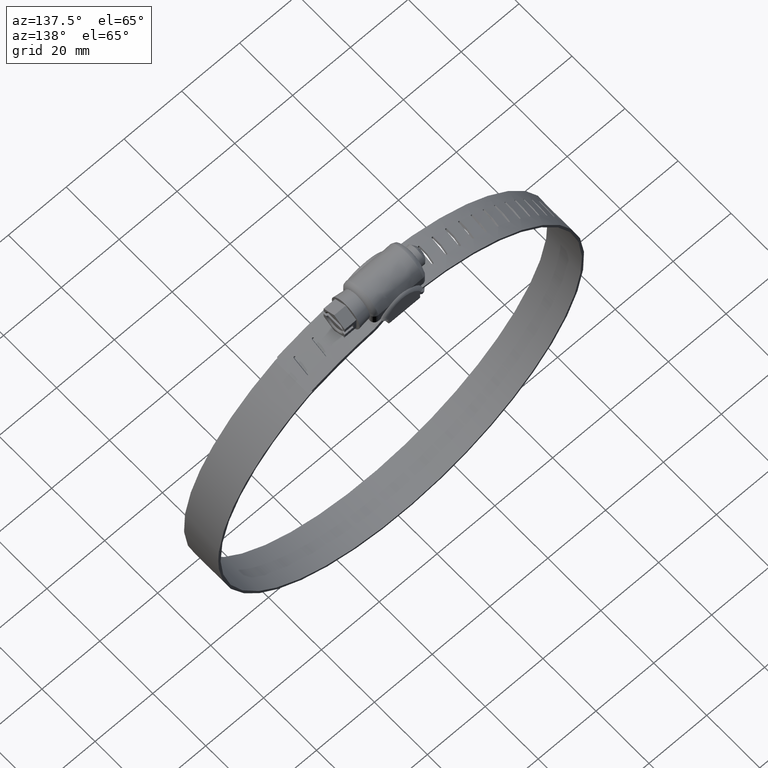
[diagram: clean part render]
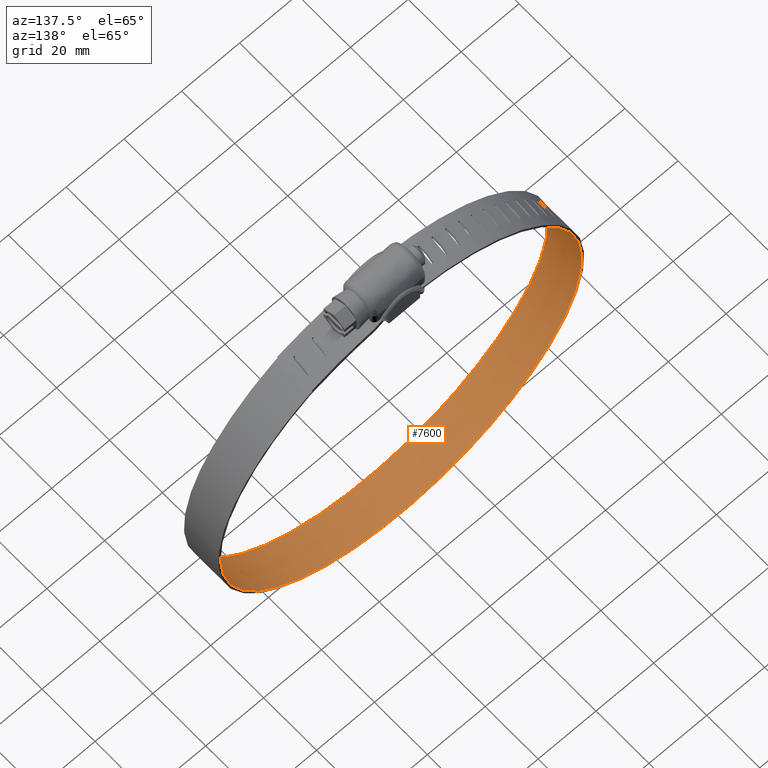
[diagram: same view with one face highlighted and labeled with its STEP entity id]
A machine part, auxiliary view. The second image highlights one B-rep face of the part: STEP entity #7600.
In plain terms, the highlighted face is a freeform B-spline surface patch.
Its self-contained STEP definition (entity closure, byte-faithful):
#3625=CARTESIAN_POINT('',(-10.073347933729380,-2.930487999999955,10.787327807982781));
#3626=VERTEX_POINT('',#3625);
#3632=CARTESIAN_POINT('',(-10.073347933729380,-0.236671000000000,10.787327807982740));
#3633=VERTEX_POINT('',#3632);
#3634=CARTESIAN_POINT('',(-10.073347933729380,-0.236671000000000,10.787327807982740));
#3635=CARTESIAN_POINT('',(-10.073347933729380,-2.930487999999955,10.787327807982781));
#3636=QUASI_UNIFORM_CURVE('',1,(#3634,#3635),.UNSPECIFIED.,.F.,.U.);
#3637=EDGE_CURVE('',#3633,#3626,#3636,.T.);
#3669=CARTESIAN_POINT('',(-10.041591925780059,0.072343999999987,10.792505447095360));
#3670=VERTEX_POINT('',#3669);
#3671=CARTESIAN_POINT('',(-10.041591925780059,0.072343999999987,10.792505447095360));
#3672=CARTESIAN_POINT('',(-10.073347933729380,-0.236671000000000,10.787327807982740));
#3673=QUASI_UNIFORM_CURVE('',1,(#3671,#3672),.UNSPECIFIED.,.F.,.U.);
#3674=EDGE_CURVE('',#3670,#3633,#3673,.T.);
#3697=CARTESIAN_POINT('',(-9.480734929372209,2.769512000000000,10.881188487007019));
#3698=VERTEX_POINT('',#3697);
#3699=CARTESIAN_POINT('',(-9.480734929372209,2.769512000000000,10.881188487007019));
#3700=CARTESIAN_POINT('',(-10.041591925780059,0.072343999999987,10.792505447095360));
#3701=QUASI_UNIFORM_CURVE('',1,(#3699,#3700),.UNSPECIFIED.,.F.,.U.);
#3702=EDGE_CURVE('',#3698,#3670,#3701,.T.);
#3753=CARTESIAN_POINT('',(-9.153020359526929,3.067863319174412,10.930593103006860));
#3754=VERTEX_POINT('',#3753);
#3755=CARTESIAN_POINT('',(-9.153020359526929,3.067863319174412,10.930593103006860));
#3756=CARTESIAN_POINT('',(-9.225275922470228,3.076093977470655,10.919870164613650));
#3757=CARTESIAN_POINT('',(-9.342430773940464,3.043368415122489,10.902378249655889));
#3758=CARTESIAN_POINT('',(-9.455734445896514,2.916018791775216,10.885241587920580));
#3759=CARTESIAN_POINT('',(-9.480869284524605,2.821892999834519,10.881288793036090));
#3760=CARTESIAN_POINT('',(-9.480734929372209,2.769512000000000,10.881188487007019));
#3761=B_SPLINE_CURVE_WITH_KNOTS('',3,(#3755,#3756,#3757,#3758,#3759,#3760),.UNSPECIFIED.,.F.,.U.,(4,1,1,4),(0.000002007815631,0.220067737437775,0.345758187510675,0.502937233466656),.UNSPECIFIED.);
#3762=EDGE_CURVE('',#3754,#3698,#3761,.T.);
#3764=CARTESIAN_POINT('',(-8.893729620061420,2.707046000000000,10.968424379192300));
#3765=VERTEX_POINT('',#3764);
#3766=CARTESIAN_POINT('',(-8.893729620061420,2.707046000000000,10.968424379192300));
#3767=CARTESIAN_POINT('',(-8.878153043268087,2.778830426960299,10.970907978595040));
#3768=CARTESIAN_POINT('',(-8.898025378225553,2.900054293739540,10.968219727245289));
#3769=CARTESIAN_POINT('',(-9.011515536667005,3.027351317416934,10.951592050657259));
#3770=CARTESIAN_POINT('',(-9.101491662578438,3.062499122159970,10.938261015887550));
#3771=CARTESIAN_POINT('',(-9.153020359526929,3.067863319174412,10.930593103006860));
#3772=B_SPLINE_CURVE_WITH_KNOTS('',3,(#3766,#3767,#3768,#3769,#3770,#3771),.UNSPECIFIED.,.F.,.U.,(4,1,1,4),(0.000002011900081,0.220068079004150,0.345758724525728,0.502938013510747),.UNSPECIFIED.);
#3773=EDGE_CURVE('',#3765,#3754,#3772,.T.);
#3796=CARTESIAN_POINT('',(-9.480734929372179,-2.930488000000000,10.881188487006920));
#3797=VERTEX_POINT('',#3796);
#3798=CARTESIAN_POINT('',(-9.480734929372179,-2.930488000000000,10.881188487006920));
#3799=CARTESIAN_POINT('',(-8.893729620061420,2.707046000000000,10.968424379192300));
#3800=QUASI_UNIFORM_CURVE('',1,(#3798,#3799),.UNSPECIFIED.,.F.,.U.);
#3801=EDGE_CURVE('',#3797,#3765,#3800,.T.);
#3850=CARTESIAN_POINT('',(-9.777155319386905,-3.230487998482288,10.834969088512750));
#3851=VERTEX_POINT('',#3850);
#3852=CARTESIAN_POINT('',(-9.777155319386905,-3.230487998482288,10.834969088512750));
#3853=CARTESIAN_POINT('',(-9.709192188851377,-3.230862096469936,10.845734299910429));
#3854=CARTESIAN_POINT('',(-9.593286057853700,-3.188197295333823,10.863988355077611));
#3855=CARTESIAN_POINT('',(-9.498125748838046,-3.058120062378599,10.878744188768740));
#3856=CARTESIAN_POINT('',(-9.480718048706864,-2.969742320217996,10.881286545887541));
#3857=CARTESIAN_POINT('',(-9.480734929372179,-2.930488000000000,10.881188487006920));
#3858=B_SPLINE_CURVE_WITH_KNOTS('',3,(#3852,#3853,#3854,#3855,#3856,#3857),.UNSPECIFIED.,.F.,.U.,(4,1,1,4),(0.000001321884496,0.206270783002974,0.353572823872481,0.471430012562001),.UNSPECIFIED.);
#3859=EDGE_CURVE('',#3851,#3797,#3858,.T.);
#3861=CARTESIAN_POINT('',(-10.073347933729380,-2.930487999999955,10.787327807982781));
#3862=CARTESIAN_POINT('',(-10.073391937449051,-2.969746705867179,10.787416234380959));
#3863=CARTESIAN_POINT('',(-10.056069811298929,-3.058124937450047,10.790374542549580));
#3864=CARTESIAN_POINT('',(-9.960975355381528,-3.188188958400353,10.805752071217210));
#3865=CARTESIAN_POINT('',(-9.845125653995464,-3.230861954959052,10.824204553768340));
#3866=CARTESIAN_POINT('',(-9.777155319386905,-3.230487998482288,10.834969088512750));
#3867=B_SPLINE_CURVE_WITH_KNOTS('',3,(#3861,#3862,#3863,#3864,#3865,#3866),.UNSPECIFIED.,.F.,.U.,(4,1,1,4),(0.000001364079638,0.117858168831964,0.265159725239351,0.471428580527808),.UNSPECIFIED.);
#3868=EDGE_CURVE('',#3626,#3851,#3867,.T.);
#3888=CARTESIAN_POINT('',(-14.881878135483239,-2.930487999999955,9.806834305322839));
#3889=VERTEX_POINT('',#3888);
#3895=CARTESIAN_POINT('',(-14.881878135483239,-0.236671000000000,9.806834305322809));
#3896=VERTEX_POINT('',#3895);
#3897=CARTESIAN_POINT('',(-14.881878135483239,-0.236671000000000,9.806834305322809));
#3898=CARTESIAN_POINT('',(-14.881878135483239,-2.930487999999955,9.806834305322839));
#3899=QUASI_UNIFORM_CURVE('',1,(#3897,#3898),.UNSPECIFIED.,.F.,.U.);
#3900=EDGE_CURVE('',#3896,#3889,#3899,.T.);
#3932=CARTESIAN_POINT('',(-14.850626253591180,0.072343999999987,9.814487531169490));
#3933=VERTEX_POINT('',#3932);
#3934=CARTESIAN_POINT('',(-14.850626253591180,0.072343999999987,9.814487531169490));
#3935=CARTESIAN_POINT('',(-14.881878135483239,-0.236671000000000,9.806834305322809));
#3936=QUASI_UNIFORM_CURVE('',1,(#3934,#3935),.UNSPECIFIED.,.F.,.U.);
#3937=EDGE_CURVE('',#3933,#3896,#3936,.T.);
#3960=CARTESIAN_POINT('',(-14.298456183244600,2.769512000000000,9.946901523636530));
#3961=VERTEX_POINT('',#3960);
#3962=CARTESIAN_POINT('',(-14.298456183244600,2.769512000000000,9.946901523636530));
#3963=CARTESIAN_POINT('',(-14.850626253591180,0.072343999999987,9.814487531169490));
#3964=QUASI_UNIFORM_CURVE('',1,(#3962,#3963),.UNSPECIFIED.,.F.,.U.);
#3965=EDGE_CURVE('',#3961,#3933,#3964,.T.);
#4016=CARTESIAN_POINT('',(-13.975628089545040,3.067863319174413,10.021866030500030));
#4017=VERTEX_POINT('',#4016);
#4018=CARTESIAN_POINT('',(-13.975628089545040,3.067863319174413,10.021866030500030));
#4019=CARTESIAN_POINT('',(-14.046858379397360,3.076085958938212,10.005498101171380));
#4020=CARTESIAN_POINT('',(-14.151674850316359,3.046354684191819,9.981314948369700));
#4021=CARTESIAN_POINT('',(-14.268589645929850,2.926282812830905,9.954137930491307));
#4022=CARTESIAN_POINT('',(-14.298762768451679,2.832464716430188,9.946977710080088));
#4023=CARTESIAN_POINT('',(-14.298456183244600,2.769512000000000,9.946901523636530));
#4024=B_SPLINE_CURVE_WITH_KNOTS('',3,(#4018,#4019,#4020,#4021,#4022,#4023),.UNSPECIFIED.,.F.,.U.,(4,1,1,4),(0.000002007815764,0.220067737437836,0.314308159466207,0.502937233466669),.UNSPECIFIED.);
#4025=EDGE_CURVE('',#4017,#3961,#4024,.T.);
#4027=CARTESIAN_POINT('',(-13.720104864615161,2.707046000000000,10.079924402435660));
#4028=VERTEX_POINT('',#4027);
#4029=CARTESIAN_POINT('',(-13.720104864615161,2.707046000000000,10.079924402435660));
#4030=CARTESIAN_POINT('',(-13.709390370761330,2.758256890035817,10.082510852443340));
#4031=CARTESIAN_POINT('',(-13.714038609490199,2.844777731338692,10.081637872005890));
#4032=CARTESIAN_POINT('',(-13.789079729673380,2.996124042627759,10.064691464298170));
#4033=CARTESIAN_POINT('',(-13.893943769375641,3.059938268581802,10.040671897163399));
#4034=CARTESIAN_POINT('',(-13.975628089545040,3.067863319174413,10.021866030500030));
#4035=B_SPLINE_CURVE_WITH_KNOTS('',3,(#4029,#4030,#4031,#4032,#4033,#4034),.UNSPECIFIED.,.F.,.U.,(4,1,1,4),(0.000002011900260,0.157181300884871,0.251470012593793,0.502938013510743),.UNSPECIFIED.);
#4036=EDGE_CURVE('',#4028,#4017,#4035,.T.);
#4059=CARTESIAN_POINT('',(-14.298456183244600,-2.930488000000000,9.946901523636530));
#4060=VERTEX_POINT('',#4059);
#4061=CARTESIAN_POINT('',(-14.298456183244600,-2.930488000000000,9.946901523636530));
#4062=CARTESIAN_POINT('',(-13.720104864615161,2.707046000000000,10.079924402435660));
#4063=QUASI_UNIFORM_CURVE('',1,(#4061,#4062),.UNSPECIFIED.,.F.,.U.);
#4064=EDGE_CURVE('',#4060,#4028,#4063,.T.);
#4113=CARTESIAN_POINT('',(-14.590336475911119,-3.230487998482288,9.877567728367007));
#4114=VERTEX_POINT('',#4113);
#4115=CARTESIAN_POINT('',(-14.590336475911119,-3.230487998482288,9.877567728367007));
#4116=CARTESIAN_POINT('',(-14.523427481777080,-3.230862096469928,9.893632079975324));
#4117=CARTESIAN_POINT('',(-14.409310847361340,-3.188197295333805,9.920923754209820));
#4118=CARTESIAN_POINT('',(-14.315601615188470,-3.058120062378573,9.943100292384809));
#4119=CARTESIAN_POINT('',(-14.298447048227811,-2.969742320217990,9.947000604676049));
#4120=CARTESIAN_POINT('',(-14.298456183244600,-2.930488000000000,9.946901523636530));
#4121=B_SPLINE_CURVE_WITH_KNOTS('',3,(#4115,#4116,#4117,#4118,#4119,#4120),.UNSPECIFIED.,.F.,.U.,(4,1,1,4),(0.000001321884622,0.206270783002978,0.353572823872423,0.471430012561908),.UNSPECIFIED.);
#4122=EDGE_CURVE('',#4114,#4060,#4121,.T.);
#4124=CARTESIAN_POINT('',(-14.881878135483239,-2.930487999999955,9.806834305322839));
#4125=CARTESIAN_POINT('',(-14.882282043239540,-2.999305723776589,9.806907192261910));
#4126=CARTESIAN_POINT('',(-14.840856712548090,-3.116613613590800,9.817142074803293));
#4127=CARTESIAN_POINT('',(-14.714432252993840,-3.212945940323676,9.847731670659416));
#4128=CARTESIAN_POINT('',(-14.628514695040669,-3.230515047216185,9.868402015640944));
#4129=CARTESIAN_POINT('',(-14.590336475911119,-3.230487998482288,9.877567728367007));
#4130=B_SPLINE_CURVE_WITH_KNOTS('',3,(#4124,#4125,#4126,#4127,#4128,#4129),.UNSPECIFIED.,.F.,.U.,(4,1,1,4),(0.000001364079643,0.206270166758181,0.353571742159716,0.471428580527841),.UNSPECIFIED.);
#4131=EDGE_CURVE('',#3889,#4114,#4130,.T.);
#4151=CARTESIAN_POINT('',(-19.598656609805200,-2.930487999999955,8.452090405498792));
#4152=VERTEX_POINT('',#4151);
#4158=CARTESIAN_POINT('',(-19.598656609805200,-0.236671000000000,8.452090405498771));
#4159=VERTEX_POINT('',#4158);
#4160=CARTESIAN_POINT('',(-19.598656609805200,-0.236671000000000,8.452090405498771));
#4161=CARTESIAN_POINT('',(-19.598656609805200,-2.930487999999955,8.452090405498792));
#4162=QUASI_UNIFORM_CURVE('',1,(#4160,#4161),.UNSPECIFIED.,.F.,.U.);
#4163=EDGE_CURVE('',#4159,#4152,#4162,.T.);
#4195=CARTESIAN_POINT('',(-19.568101532214602,0.072343999999987,8.462172033397300));
#4196=VERTEX_POINT('',#4195);
#4197=CARTESIAN_POINT('',(-19.568101532214602,0.072343999999987,8.462172033397300));
#4198=CARTESIAN_POINT('',(-19.598656609805200,-0.236671000000000,8.452090405498771));
#4199=QUASI_UNIFORM_CURVE('',1,(#4197,#4198),.UNSPECIFIED.,.F.,.U.);
#4200=EDGE_CURVE('',#4196,#4159,#4199,.T.);
#4223=CARTESIAN_POINT('',(-19.028022700027950,2.769512000000000,8.637500602123430));
#4224=VERTEX_POINT('',#4223);
#4225=CARTESIAN_POINT('',(-19.028022700027950,2.769512000000000,8.637500602123430));
#4226=CARTESIAN_POINT('',(-19.568101532214602,0.072343999999987,8.462172033397300));
#4227=QUASI_UNIFORM_CURVE('',1,(#4225,#4226),.UNSPECIFIED.,.F.,.U.);
#4228=EDGE_CURVE('',#4224,#4196,#4227,.T.);
#4279=CARTESIAN_POINT('',(-18.712071425023471,3.067863319174412,8.737562818738009));
#4280=VERTEX_POINT('',#4279);
#4281=CARTESIAN_POINT('',(-18.712071425023471,3.067863319174412,8.737562818738009));
#4282=CARTESIAN_POINT('',(-18.781731262767622,3.076063753645247,8.715677590705822));
#4283=CARTESIAN_POINT('',(-18.905121634475829,3.040474812238355,8.676792369426321));
#4284=CARTESIAN_POINT('',(-19.009022648545368,2.905649762449892,8.643799362584478));
#4285=CARTESIAN_POINT('',(-19.028089892798722,2.811406281019235,8.637579220703925));
#4286=CARTESIAN_POINT('',(-19.028022700027950,2.769512000000000,8.637500602123430));
#4287=B_SPLINE_CURVE_WITH_KNOTS('',3,(#4281,#4282,#4283,#4284,#4285,#4286),.UNSPECIFIED.,.F.,.U.,(4,1,1,4),(0.000002007815719,0.220067737437685,0.377203427193016,0.502937233466362),.UNSPECIFIED.);
#4288=EDGE_CURVE('',#4280,#4224,#4287,.T.);
#4290=CARTESIAN_POINT('',(-18.461891100280699,2.707046000000000,8.815490337254410));
#4291=VERTEX_POINT('',#4290);
#4292=CARTESIAN_POINT('',(-18.461891100280699,2.707046000000000,8.815490337254410));
#4293=CARTESIAN_POINT('',(-18.451449580322020,2.758217056899654,8.818897716076494));
#4294=CARTESIAN_POINT('',(-18.457462897368998,2.877430197306284,8.817283352769627));
#4295=CARTESIAN_POINT('',(-18.556097693669781,3.019667520632396,8.786560014850441));
#4296=CARTESIAN_POINT('',(-18.662407118851348,3.062475167089149,8.753187543946048));
#4297=CARTESIAN_POINT('',(-18.712071425023471,3.067863319174412,8.737562818738009));
#4298=B_SPLINE_CURVE_WITH_KNOTS('',3,(#4292,#4293,#4294,#4295,#4296,#4297),.UNSPECIFIED.,.F.,.U.,(4,1,1,4),(0.000002011900281,0.157181300884926,0.345758724525844,0.502938013510902),.UNSPECIFIED.);
#4299=EDGE_CURVE('',#4291,#4280,#4298,.T.);
#4322=CARTESIAN_POINT('',(-19.028022700028000,-2.930488000000000,8.637500602123760));
#4323=VERTEX_POINT('',#4322);
#4324=CARTESIAN_POINT('',(-19.028022700028000,-2.930488000000000,8.637500602123760));
#4325=CARTESIAN_POINT('',(-18.461891100280699,2.707046000000000,8.815490337254410));
#4326=QUASI_UNIFORM_CURVE('',1,(#4324,#4325),.UNSPECIFIED.,.F.,.U.);
#4327=EDGE_CURVE('',#4323,#4291,#4326,.T.);
#4376=CARTESIAN_POINT('',(-19.313563356282430,-3.230487998482288,8.545479875982750));
#4377=VERTEX_POINT('',#4376);
#4378=CARTESIAN_POINT('',(-19.313563356282430,-3.230487998482288,8.545479875982750));
#4379=CARTESIAN_POINT('',(-19.276229455006050,-3.230519431933796,8.557610475151844));
#4380=CARTESIAN_POINT('',(-19.192167382501559,-3.212932529785482,8.584879517219070));
#4381=CARTESIAN_POINT('',(-19.068377936308341,-3.116629365021630,8.624858123126197));
#4382=CARTESIAN_POINT('',(-19.027720913015941,-2.999299373413096,8.637772305782065));
#4383=CARTESIAN_POINT('',(-19.028022700028000,-2.930488000000000,8.637500602123760));
#4384=B_SPLINE_CURVE_WITH_KNOTS('',3,(#4378,#4379,#4380,#4381,#4382,#4383),.UNSPECIFIED.,.F.,.U.,(4,1,1,4),(0.000001321884763,0.117858500565187,0.265160535781300,0.471430012562087),.UNSPECIFIED.);
#4385=EDGE_CURVE('',#4377,#4323,#4384,.T.);
#4387=CARTESIAN_POINT('',(-19.598656609805200,-2.930487999999955,8.452090405498792));
#4388=CARTESIAN_POINT('',(-19.599063764967472,-2.999296916767853,8.452131753681762));
#4389=CARTESIAN_POINT('',(-19.558575449255400,-3.116633779309989,8.465583307264936));
#4390=CARTESIAN_POINT('',(-19.434936077447318,-3.212927060564345,8.505999172800713));
#4391=CARTESIAN_POINT('',(-19.350896154432188,-3.230520179235252,8.533349795741447));
#4392=CARTESIAN_POINT('',(-19.313563356282430,-3.230487998482288,8.545479875982750));
#4393=B_SPLINE_CURVE_WITH_KNOTS('',3,(#4387,#4388,#4389,#4390,#4391,#4392),.UNSPECIFIED.,.F.,.U.,(4,1,1,4),(0.000001364079513,0.206270166758048,0.353571742159611,0.471428580527718),.UNSPECIFIED.);
#4394=EDGE_CURVE('',#4152,#4377,#4393,.T.);
#4414=CARTESIAN_POINT('',(-24.194602848913050,-2.930487999999955,6.731448555151109));
#4415=VERTEX_POINT('',#4414);
#4421=CARTESIAN_POINT('',(-24.194602848913100,-0.236671000000000,6.731448555151069));
#4422=VERTEX_POINT('',#4421);
#4423=CARTESIAN_POINT('',(-24.194602848913100,-0.236671000000000,6.731448555151069));
#4424=CARTESIAN_POINT('',(-24.194602848913050,-2.930487999999955,6.731448555151109));
#4425=QUASI_UNIFORM_CURVE('',1,(#4423,#4424),.UNSPECIFIED.,.F.,.U.);
#4426=EDGE_CURVE('',#4422,#4415,#4425,.T.);
#4458=CARTESIAN_POINT('',(-24.164932957837848,0.072343999999987,6.743896428513100));
#4459=VERTEX_POINT('',#4458);
#4460=CARTESIAN_POINT('',(-24.164932957837848,0.072343999999987,6.743896428513100));
#4461=CARTESIAN_POINT('',(-24.194602848913100,-0.236671000000000,6.731448555151069));
#4462=QUASI_UNIFORM_CURVE('',1,(#4460,#4461),.UNSPECIFIED.,.F.,.U.);
#4463=EDGE_CURVE('',#4459,#4422,#4462,.T.);
#4486=CARTESIAN_POINT('',(-23.640275129406302,2.769512000000000,6.961058614570300));
#4487=VERTEX_POINT('',#4486);
#4488=CARTESIAN_POINT('',(-23.640275129406302,2.769512000000000,6.961058614570300));
#4489=CARTESIAN_POINT('',(-24.164932957837848,0.072343999999987,6.743896428513100));
#4490=QUASI_UNIFORM_CURVE('',1,(#4488,#4489),.UNSPECIFIED.,.F.,.U.);
#4491=EDGE_CURVE('',#4487,#4459,#4490,.T.);
#4542=CARTESIAN_POINT('',(-23.333148617771052,3.067863319174414,7.085601624095643));
#4543=VERTEX_POINT('',#4542);
#4544=CARTESIAN_POINT('',(-23.333148617771052,3.067863319174414,7.085601624095643));
#4545=CARTESIAN_POINT('',(-23.400932617505820,3.076092452126973,7.058295909880189));
#4546=CARTESIAN_POINT('',(-23.500699984884829,3.046340667592286,7.018003680615043));
#4547=CARTESIAN_POINT('',(-23.611891140247529,2.926308483444222,6.972885074471992));
#4548=CARTESIAN_POINT('',(-23.640600648885119,2.832436099805284,6.961081482405477));
#4549=CARTESIAN_POINT('',(-23.640275129406302,2.769512000000000,6.961058614570300));
#4550=B_SPLINE_CURVE_WITH_KNOTS('',3,(#4544,#4545,#4546,#4547,#4548,#4549),.UNSPECIFIED.,.F.,.U.,(4,1,1,4),(0.000002007815889,0.220067737437806,0.314308159466120,0.502937233466505),.UNSPECIFIED.);
#4551=EDGE_CURVE('',#4543,#4487,#4550,.T.);
#4553=CARTESIAN_POINT('',(-23.089853638111251,2.707046000000000,7.182917840127660));
#4554=VERTEX_POINT('',#4553);
#4555=CARTESIAN_POINT('',(-23.089853638111251,2.707046000000000,7.182917840127660));
#4556=CARTESIAN_POINT('',(-23.079678468279759,2.758253227845536,7.187147423603822));
#4557=CARTESIAN_POINT('',(-23.084653360307669,2.855619317518100,7.185374120523875));
#4558=CARTESIAN_POINT('',(-23.164141394212351,3.004031595216925,7.153652973432394));
#4559=CARTESIAN_POINT('',(-23.265292955883311,3.060704736365835,7.112968403110225));
#4560=CARTESIAN_POINT('',(-23.333148617771052,3.067863319174414,7.085601624095643));
#4561=B_SPLINE_CURVE_WITH_KNOTS('',3,(#4555,#4556,#4557,#4558,#4559,#4560),.UNSPECIFIED.,.F.,.U.,(4,1,1,4),(0.000002011900425,0.157181300885015,0.282871946405653,0.502938013510812),.UNSPECIFIED.);
#4562=EDGE_CURVE('',#4554,#4543,#4561,.T.);
#4585=CARTESIAN_POINT('',(-23.640275129406099,-2.930488000000000,6.961058614569750));
#4586=VERTEX_POINT('',#4585);
#4587=CARTESIAN_POINT('',(-23.640275129406099,-2.930488000000000,6.961058614569750));
#4588=CARTESIAN_POINT('',(-23.089853638111251,2.707046000000000,7.182917840127660));
#4589=QUASI_UNIFORM_CURVE('',1,(#4587,#4588),.UNSPECIFIED.,.F.,.U.);
#4590=EDGE_CURVE('',#4586,#4554,#4589,.T.);
#4639=CARTESIAN_POINT('',(-23.917715696150260,-3.230487998482288,6.846918295934337));
#4640=VERTEX_POINT('',#4639);
#4641=CARTESIAN_POINT('',(-23.917715696150260,-3.230487998482288,6.846918295934337));
#4642=CARTESIAN_POINT('',(-23.854143481013171,-3.230862096469917,6.873251741420765));
#4643=CARTESIAN_POINT('',(-23.745701170191658,-3.188197295333797,6.918059184514354));
#4644=CARTESIAN_POINT('',(-23.656614829054249,-3.058120062378564,6.954622046308654));
#4645=CARTESIAN_POINT('',(-23.640281606545901,-2.969742320217974,6.961157904788740));
#4646=CARTESIAN_POINT('',(-23.640275129406099,-2.930488000000000,6.961058614569750));
#4647=B_SPLINE_CURVE_WITH_KNOTS('',3,(#4641,#4642,#4643,#4644,#4645,#4646),.UNSPECIFIED.,.F.,.U.,(4,1,1,4),(0.000001321884714,0.206270783003020,0.353572823872406,0.471430012561846),.UNSPECIFIED.);
#4648=EDGE_CURVE('',#4640,#4586,#4647,.T.);
#4650=CARTESIAN_POINT('',(-24.194602848913050,-2.930487999999955,6.731448555151109));
#4651=CARTESIAN_POINT('',(-24.194727421071729,-2.979564840361404,6.731524445320371));
#4652=CARTESIAN_POINT('',(-24.169790892470260,-3.087620544943858,6.742134196010674));
#4653=CARTESIAN_POINT('',(-24.062858873952528,-3.203480986392481,6.786727865515034));
#4654=CARTESIAN_POINT('',(-23.963052248138769,-3.230565809473497,6.828139483343050));
#4655=CARTESIAN_POINT('',(-23.917715696150260,-3.230487998482288,6.846918295934337));
#4656=B_SPLINE_CURVE_WITH_KNOTS('',3,(#4650,#4651,#4652,#4653,#4654,#4655),.UNSPECIFIED.,.F.,.U.,(4,1,1,4),(0.000001364079620,0.147335289878811,0.324094618972258,0.471428580527838),.UNSPECIFIED.);
#4657=EDGE_CURVE('',#4415,#4640,#4656,.T.);
#4677=CARTESIAN_POINT('',(-28.641381315935600,-2.930487999999955,4.655517083458650));
#4678=VERTEX_POINT('',#4677);
#4684=CARTESIAN_POINT('',(-28.641381315935600,-0.236671000000000,4.655517083458681));
#4685=VERTEX_POINT('',#4684);
#4686=CARTESIAN_POINT('',(-28.641381315935600,-0.236671000000000,4.655517083458681));
#4687=CARTESIAN_POINT('',(-28.641381315935600,-2.930487999999955,4.655517083458650));
#4688=QUASI_UNIFORM_CURVE('',1,(#4686,#4687),.UNSPECIFIED.,.F.,.U.);
#4689=EDGE_CURVE('',#4685,#4678,#4688,.T.);
#4721=CARTESIAN_POINT('',(-28.612779536120399,0.072343999999987,4.670254457005400));
#4722=VERTEX_POINT('',#4721);
#4723=CARTESIAN_POINT('',(-28.612779536120399,0.072343999999987,4.670254457005400));
#4724=CARTESIAN_POINT('',(-28.641381315935600,-0.236671000000000,4.655517083458681));
#4725=QUASI_UNIFORM_CURVE('',1,(#4723,#4724),.UNSPECIFIED.,.F.,.U.);
#4726=EDGE_CURVE('',#4722,#4685,#4725,.T.);
#4749=CARTESIAN_POINT('',(-28.106777401422502,2.769512000000000,4.927911383302400));
#4750=VERTEX_POINT('',#4749);
#4751=CARTESIAN_POINT('',(-28.106777401422502,2.769512000000000,4.927911383302400));
#4752=CARTESIAN_POINT('',(-28.612779536120399,0.072343999999987,4.670254457005400));
#4753=QUASI_UNIFORM_CURVE('',1,(#4751,#4752),.UNSPECIFIED.,.F.,.U.);
#4754=EDGE_CURVE('',#4750,#4722,#4753,.T.);
#4805=CARTESIAN_POINT('',(-27.810369190231050,3.067863319174415,5.076167336670519));
#4806=VERTEX_POINT('',#4805);
#4807=CARTESIAN_POINT('',(-27.810369190231050,3.067863319174415,5.076167336670519));
#4808=CARTESIAN_POINT('',(-27.856994434834210,3.073464695201329,5.052979831255321));
#4809=CARTESIAN_POINT('',(-27.933598028158539,3.059711642284916,5.014825358756638));
#4810=CARTESIAN_POINT('',(-28.061021866990320,2.967369313518095,4.951182270134860));
#4811=CARTESIAN_POINT('',(-28.107665776561699,2.853701389912229,4.927682894495620));
#4812=CARTESIAN_POINT('',(-28.106777401422502,2.769512000000000,4.927911383302400));
#4813=B_SPLINE_CURVE_WITH_KNOTS('',3,(#4807,#4808,#4809,#4810,#4811,#4812),.UNSPECIFIED.,.F.,.U.,(4,1,1,4),(0.000002007815576,0.157181054938162,0.251469623695154,0.502937233466390),.UNSPECIFIED.);
#4814=EDGE_CURVE('',#4806,#4750,#4813,.T.);
#4816=CARTESIAN_POINT('',(-27.575459550107301,2.707046000000000,5.192272263385370));
#4817=VERTEX_POINT('',#4816);
#4818=CARTESIAN_POINT('',(-27.575459550107301,2.707046000000000,5.192272263385370));
#4819=CARTESIAN_POINT('',(-27.561361593907730,2.778830314661053,5.199473248178823));
#4820=CARTESIAN_POINT('',(-27.579520352126600,2.900058835831665,5.190730983620938));
#4821=CARTESIAN_POINT('',(-27.682280360496101,3.027345490897584,5.139865294307690));
#4822=CARTESIAN_POINT('',(-27.763723166165931,3.062500108414777,5.099387601990218));
#4823=CARTESIAN_POINT('',(-27.810369190231050,3.067863319174415,5.076167336670519));
#4824=B_SPLINE_CURVE_WITH_KNOTS('',3,(#4818,#4819,#4820,#4821,#4822,#4823),.UNSPECIFIED.,.F.,.U.,(4,1,1,4),(0.000002011900156,0.220068079004275,0.345758724525871,0.502938013510917),.UNSPECIFIED.);
#4825=EDGE_CURVE('',#4817,#4806,#4824,.T.);
#4848=CARTESIAN_POINT('',(-28.106777401422502,-2.930488000000000,4.927911383302400));
#4849=VERTEX_POINT('',#4848);
#4850=CARTESIAN_POINT('',(-28.106777401422502,-2.930488000000000,4.927911383302400));
#4851=CARTESIAN_POINT('',(-27.575459550107301,2.707046000000000,5.192272263385370));
#4852=QUASI_UNIFORM_CURVE('',1,(#4850,#4851),.UNSPECIFIED.,.F.,.U.);
#4853=EDGE_CURVE('',#4849,#4817,#4852,.T.);
#4902=CARTESIAN_POINT('',(-28.374407365304471,-3.230487998482288,4.792355185191350));
#4903=VERTEX_POINT('',#4902);
#4904=CARTESIAN_POINT('',(-28.374407365304471,-3.230487998482288,4.792355185191350));
#4905=CARTESIAN_POINT('',(-28.313092363392428,-3.230865963565446,4.823597757157633));
#4906=CARTESIAN_POINT('',(-28.208515989493112,-3.188183643442573,4.876767112011232));
#4907=CARTESIAN_POINT('',(-28.122553443304810,-3.058131930600750,4.920216909918540));
#4908=CARTESIAN_POINT('',(-28.106788302543709,-2.969735983979779,4.928011547195983));
#4909=CARTESIAN_POINT('',(-28.106777401422502,-2.930488000000000,4.927911383302400));
#4910=B_SPLINE_CURVE_WITH_KNOTS('',3,(#4904,#4905,#4906,#4907,#4908,#4909),.UNSPECIFIED.,.F.,.U.,(4,1,1,4),(0.000001321884622,0.206270783003095,0.353572823872606,0.471430012562127),.UNSPECIFIED.);
#4911=EDGE_CURVE('',#4903,#4849,#4910,.T.);
#4913=CARTESIAN_POINT('',(-28.641381315935600,-2.930487999999955,4.655517083458650));
#4914=CARTESIAN_POINT('',(-28.641450491219761,-2.969746705867168,4.655587584063634));
#4915=CARTESIAN_POINT('',(-28.625890337767348,-3.058124937450032,4.663753933683664));
#4916=CARTESIAN_POINT('',(-28.540202053493470,-3.188188958400373,4.707764635476774));
#4917=CARTESIAN_POINT('',(-28.435724570776099,-3.230861954958988,4.761113515770417));
#4918=CARTESIAN_POINT('',(-28.374407365304471,-3.230487998482288,4.792355185191350));
#4919=B_SPLINE_CURVE_WITH_KNOTS('',3,(#4913,#4914,#4915,#4916,#4917,#4918),.UNSPECIFIED.,.F.,.U.,(4,1,1,4),(0.000001364079614,0.117858168831889,0.265159725239239,0.471428580527656),.UNSPECIFIED.);
#4920=EDGE_CURVE('',#4678,#4903,#4919,.T.);
#4940=CARTESIAN_POINT('',(-32.911576142919500,-2.930487999999955,2.237094798261695));
#4941=VERTEX_POINT('',#4940);
#4947=CARTESIAN_POINT('',(-32.911576142919600,-0.236671000000000,2.237094798261840));
#4948=VERTEX_POINT('',#4947);
#4949=CARTESIAN_POINT('',(-32.911576142919600,-0.236671000000000,2.237094798261840));
#4950=CARTESIAN_POINT('',(-32.911576142919500,-2.930487999999955,2.237094798261695));
#4951=QUASI_UNIFORM_CURVE('',1,(#4949,#4950),.UNSPECIFIED.,.F.,.U.);
#4952=EDGE_CURVE('',#4948,#4941,#4951,.T.);
#4984=CARTESIAN_POINT('',(-32.884218813847937,0.072343999999987,2.254030811184615));
#4985=VERTEX_POINT('',#4984);
#4986=CARTESIAN_POINT('',(-32.884218813847937,0.072343999999987,2.254030811184615));
#4987=CARTESIAN_POINT('',(-32.911576142919600,-0.236671000000000,2.237094798261840));
#4988=QUASI_UNIFORM_CURVE('',1,(#4986,#4987),.UNSPECIFIED.,.F.,.U.);
#4989=EDGE_CURVE('',#4985,#4948,#4988,.T.);
#5012=CARTESIAN_POINT('',(-32.399992044306757,2.769512000000000,2.550593937091005));
#5013=VERTEX_POINT('',#5012);
#5014=CARTESIAN_POINT('',(-32.399992044306757,2.769512000000000,2.550593937091005));
#5015=CARTESIAN_POINT('',(-32.884218813847937,0.072343999999987,2.254030811184615));
#5016=QUASI_UNIFORM_CURVE('',1,(#5014,#5015),.UNSPECIFIED.,.F.,.U.);
#5017=EDGE_CURVE('',#5013,#4985,#5016,.T.);
#5068=CARTESIAN_POINT('',(-32.116129588747043,3.067863319174413,2.721648787049440));
#5069=VERTEX_POINT('',#5068);
#5070=CARTESIAN_POINT('',(-32.116129588747043,3.067863319174413,2.721648787049440));
#5071=CARTESIAN_POINT('',(-32.160795457075089,3.073460721692466,2.694872401895279));
#5072=CARTESIAN_POINT('',(-32.243338279543842,3.058030084222866,2.645321198425988));
#5073=CARTESIAN_POINT('',(-32.362161118110478,2.957390473071714,2.573783056749607));
#5074=CARTESIAN_POINT('',(-32.400491122868502,2.843013115411035,2.550489253240658));
#5075=CARTESIAN_POINT('',(-32.399992044306757,2.769512000000000,2.550593937091005));
#5076=B_SPLINE_CURVE_WITH_KNOTS('',3,(#5070,#5071,#5072,#5073,#5074,#5075),.UNSPECIFIED.,.F.,.U.,(4,1,1,4),(0.000002007815444,0.157181054938053,0.282871507602156,0.502937233466234),.UNSPECIFIED.);
#5077=EDGE_CURVE('',#5069,#5013,#5076,.T.);
#5079=CARTESIAN_POINT('',(-31.891053584206201,2.707046000000000,2.855826598965180));
#5080=VERTEX_POINT('',#5079);
#5081=CARTESIAN_POINT('',(-31.891053584206201,2.707046000000000,2.855826598965180));
#5082=CARTESIAN_POINT('',(-31.877614015115810,2.778830815473102,2.864081516792979));
#5083=CARTESIAN_POINT('',(-31.894940824066701,2.900053023693646,2.853995531219631));
#5084=CARTESIAN_POINT('',(-31.993437092046211,3.027352678166393,2.795197860142386));
#5085=CARTESIAN_POINT('',(-32.071451986336029,3.062497062276536,2.748455596184374));
#5086=CARTESIAN_POINT('',(-32.116129588747043,3.067863319174413,2.721648787049440));
#5087=B_SPLINE_CURVE_WITH_KNOTS('',3,(#5081,#5082,#5083,#5084,#5085,#5086),.UNSPECIFIED.,.F.,.U.,(4,1,1,4),(0.000002011899789,0.220068079004096,0.345758724525797,0.502938013510962),.UNSPECIFIED.);
#5088=EDGE_CURVE('',#5080,#5069,#5087,.T.);
#5111=CARTESIAN_POINT('',(-32.399992044306899,-2.930488000000000,2.550593937091115));
#5112=VERTEX_POINT('',#5111);
#5113=CARTESIAN_POINT('',(-32.399992044306899,-2.930488000000000,2.550593937091115));
#5114=CARTESIAN_POINT('',(-31.891053584206201,2.707046000000000,2.855826598965180));
#5115=QUASI_UNIFORM_CURVE('',1,(#5113,#5114),.UNSPECIFIED.,.F.,.U.);
#5116=EDGE_CURVE('',#5112,#5080,#5115,.T.);
#5165=CARTESIAN_POINT('',(-32.656161377603063,-3.230487998482288,2.394457608543674));
#5166=VERTEX_POINT('',#5165);
#5167=CARTESIAN_POINT('',(-32.656161377603063,-3.230487998482288,2.394457608543674));
#5168=CARTESIAN_POINT('',(-32.622697277090133,-3.230524991405945,2.414964539822443));
#5169=CARTESIAN_POINT('',(-32.547303807516677,-3.212937028619932,2.461116210721274));
#5170=CARTESIAN_POINT('',(-32.436296797743573,-3.116619830613510,2.528870279878928));
#5171=CARTESIAN_POINT('',(-32.399756069237547,-2.999304724633997,2.550932248267936));
#5172=CARTESIAN_POINT('',(-32.399992044306899,-2.930488000000000,2.550593937091115));
#5173=B_SPLINE_CURVE_WITH_KNOTS('',3,(#5167,#5168,#5169,#5170,#5171,#5172),.UNSPECIFIED.,.F.,.U.,(4,1,1,4),(0.000001321884731,0.117858500565144,0.265160535781242,0.471430012562005),.UNSPECIFIED.);
#5174=EDGE_CURVE('',#5166,#5112,#5173,.T.);
#5176=CARTESIAN_POINT('',(-32.911576142919500,-2.930487999999955,2.237094798261695));
#5177=CARTESIAN_POINT('',(-32.911705626969542,-2.979559900697091,2.237153578028218));
#5178=CARTESIAN_POINT('',(-32.888747132521232,-3.087616269607235,2.251526718838729));
#5179=CARTESIAN_POINT('',(-32.790105358997103,-3.203474076888786,2.312300592261834));
#5180=CARTESIAN_POINT('',(-32.698006337013197,-3.230572180026662,2.368815221369779));
#5181=CARTESIAN_POINT('',(-32.656161377603063,-3.230487998482288,2.394457608543674));
#5182=B_SPLINE_CURVE_WITH_KNOTS('',3,(#5176,#5177,#5178,#5179,#5180,#5181),.UNSPECIFIED.,.F.,.U.,(4,1,1,4),(0.000001364079423,0.147335289878637,0.324094618972158,0.471428580527729),.UNSPECIFIED.);
#5183=EDGE_CURVE('',#4941,#5166,#5182,.T.);
#5203=CARTESIAN_POINT('',(-36.978860158772747,-2.930487999999955,-0.508907922844512));
#5204=VERTEX_POINT('',#5203);
#5210=CARTESIAN_POINT('',(-36.978860158772846,-0.236671000000000,-0.508907922844304));
#5211=VERTEX_POINT('',#5210);
#5212=CARTESIAN_POINT('',(-36.978860158772846,-0.236671000000000,-0.508907922844304));
#5213=CARTESIAN_POINT('',(-36.978860158772747,-2.930487999999955,-0.508907922844512));
#5214=QUASI_UNIFORM_CURVE('',1,(#5212,#5213),.UNSPECIFIED.,.F.,.U.);
#5215=EDGE_CURVE('',#5211,#5204,#5214,.T.);
#5247=CARTESIAN_POINT('',(-36.952915947475852,0.072343999999987,-0.489877686696782));
#5248=VERTEX_POINT('',#5247);
#5249=CARTESIAN_POINT('',(-36.952915947475852,0.072343999999987,-0.489877686696782));
#5250=CARTESIAN_POINT('',(-36.978860158772846,-0.236671000000000,-0.508907922844304));
#5251=QUASI_UNIFORM_CURVE('',1,(#5249,#5250),.UNSPECIFIED.,.F.,.U.);
#5252=EDGE_CURVE('',#5248,#5211,#5251,.T.);
#5275=CARTESIAN_POINT('',(-36.493449962147757,2.769512000000000,-0.156236771468921));
#5276=VERTEX_POINT('',#5275);
#5277=CARTESIAN_POINT('',(-36.493449962147757,2.769512000000000,-0.156236771468921));
#5278=CARTESIAN_POINT('',(-36.952915947475852,0.072343999999987,-0.489877686696782));
#5279=QUASI_UNIFORM_CURVE('',1,(#5277,#5278),.UNSPECIFIED.,.F.,.U.);
#5280=EDGE_CURVE('',#5276,#5248,#5279,.T.);
#5332=CARTESIAN_POINT('',(-36.223883368650597,3.067863319174417,0.036562365048368));
#5333=VERTEX_POINT('',#5332);
#5334=CARTESIAN_POINT('',(-36.223883368650597,3.067863319174417,0.036562365048368));
#5335=CARTESIAN_POINT('',(-36.266310229447072,3.073471871412044,0.006364442285131));
#5336=CARTESIAN_POINT('',(-36.336003137337919,3.059708769369616,-0.043304543417310));
#5337=CARTESIAN_POINT('',(-36.422842596981070,2.990411194896944,-0.105339001748966));
#5338=CARTESIAN_POINT('',(-36.479089745319037,2.895162221174439,-0.145660031881671));
#5339=CARTESIAN_POINT('',(-36.493545789678798,2.811413767619908,-0.156188176400897));
#5340=CARTESIAN_POINT('',(-36.493449962147757,2.769512000000000,-0.156236771468921));
#5341=B_SPLINE_CURVE_WITH_KNOTS('',3,(#5334,#5335,#5336,#5337,#5338,#5339,#5340),.UNSPECIFIED.,.F.,.U.,(4,1,1,1,4),(0.000002007815670,0.157181054938578,0.251469623695742,0.377203427193870,0.502937233467505),.UNSPECIFIED.);
#5342=EDGE_CURVE('',#5333,#5276,#5341,.T.);
#5344=CARTESIAN_POINT('',(-36.010028668107203,2.707046000000000,0.187985811335410));
#5345=VERTEX_POINT('',#5344);
#5346=CARTESIAN_POINT('',(-36.010028668107203,2.707046000000000,0.187985811335410));
#5347=CARTESIAN_POINT('',(-35.997232972680671,2.778836004079710,0.197301987314106));
#5348=CARTESIAN_POINT('',(-36.012290929328493,2.888979679688254,0.186872225728745));
#5349=CARTESIAN_POINT('',(-36.099475142303909,3.020886927966723,0.125098325678393));
#5350=CARTESIAN_POINT('',(-36.172867177325067,3.061561324008018,0.072903914655680));
#5351=CARTESIAN_POINT('',(-36.223883368650597,3.067863319174417,0.036562365048368));
#5352=B_SPLINE_CURVE_WITH_KNOTS('',3,(#5346,#5347,#5348,#5349,#5350,#5351),.UNSPECIFIED.,.F.,.U.,(4,1,1,4),(0.000002011900715,0.220068079004193,0.314308647519275,0.502938013510231),.UNSPECIFIED.);
#5353=EDGE_CURVE('',#5345,#5333,#5352,.T.);
#5376=CARTESIAN_POINT('',(-36.493449962147757,-2.930488000000000,-0.156236771468809));
#5377=VERTEX_POINT('',#5376);
#5378=CARTESIAN_POINT('',(-36.493449962147757,-2.930488000000000,-0.156236771468809));
#5379=CARTESIAN_POINT('',(-36.010028668107203,2.707046000000000,0.187985811335410));
#5380=QUASI_UNIFORM_CURVE('',1,(#5378,#5379),.UNSPECIFIED.,.F.,.U.);
#5381=EDGE_CURVE('',#5377,#5345,#5380,.T.);
#5430=CARTESIAN_POINT('',(-36.736579295732817,-3.230487998482289,-0.331990598066848));
#5431=VERTEX_POINT('',#5430);
#5432=CARTESIAN_POINT('',(-36.736579295732817,-3.230487998482289,-0.331990598066848));
#5433=CARTESIAN_POINT('',(-36.704821206940458,-3.230519431933800,-0.308916902719796));
#5434=CARTESIAN_POINT('',(-36.633300022530918,-3.212932529785471,-0.257005893582388));
#5435=CARTESIAN_POINT('',(-36.527923331717233,-3.116629365021680,-0.180730937324056));
#5436=CARTESIAN_POINT('',(-36.493246906691219,-2.999299373413014,-0.155885108618689));
#5437=CARTESIAN_POINT('',(-36.493449962147757,-2.930488000000000,-0.156236771468809));
#5438=B_SPLINE_CURVE_WITH_KNOTS('',3,(#5432,#5433,#5434,#5435,#5436,#5437),.UNSPECIFIED.,.F.,.U.,(4,1,1,4),(0.000001321884631,0.117858500565016,0.265160535781085,0.471430012561735),.UNSPECIFIED.);
#5439=EDGE_CURVE('',#5431,#5377,#5438,.T.);
#5441=CARTESIAN_POINT('',(-36.978860158772747,-2.930487999999955,-0.508907922844512));
#5442=CARTESIAN_POINT('',(-36.978939035939767,-2.969750675060677,-0.508848754604848));
#5443=CARTESIAN_POINT('',(-36.964848855466251,-3.058120492188721,-0.498349483146927));
#5444=CARTESIAN_POINT('',(-36.887099607777706,-3.188192053298730,-0.441475480478244));
#5445=CARTESIAN_POINT('',(-36.792254408125082,-3.230860917404960,-0.372439828710292));
#5446=CARTESIAN_POINT('',(-36.736579295732817,-3.230487998482289,-0.331990598066848));
#5447=B_SPLINE_CURVE_WITH_KNOTS('',3,(#5441,#5442,#5443,#5444,#5445,#5446),.UNSPECIFIED.,.F.,.U.,(4,1,1,4),(0.000001364079213,0.117858168831728,0.265159725239356,0.471428580528074),.UNSPECIFIED.);
#5448=EDGE_CURVE('',#5204,#5431,#5447,.T.);
#5468=CARTESIAN_POINT('',(-40.818157205028299,-2.930487999999955,-3.565561059945795));
#5469=VERTEX_POINT('',#5468);
#5475=CARTESIAN_POINT('',(-40.818157205028250,-0.236671000000000,-3.565561059945875));
#5476=VERTEX_POINT('',#5475);
#5477=CARTESIAN_POINT('',(-40.818157205028250,-0.236671000000000,-3.565561059945875));
#5478=CARTESIAN_POINT('',(-40.818157205028299,-2.930487999999955,-3.565561059945795));
#5479=QUASI_UNIFORM_CURVE('',1,(#5477,#5478),.UNSPECIFIED.,.F.,.U.);
#5480=EDGE_CURVE('',#5476,#5469,#5479,.T.);
#5512=CARTESIAN_POINT('',(-40.793786066196049,0.072343999999987,-3.544553928307200));
#5513=VERTEX_POINT('',#5512);
#5514=CARTESIAN_POINT('',(-40.793786066196049,0.072343999999987,-3.544553928307200));
#5515=CARTESIAN_POINT('',(-40.818157205028250,-0.236671000000000,-3.565561059945875));
#5516=QUASI_UNIFORM_CURVE('',1,(#5514,#5515),.UNSPECIFIED.,.F.,.U.);
#5517=EDGE_CURVE('',#5513,#5476,#5516,.T.);
#5540=CARTESIAN_POINT('',(-40.361913625668002,2.769512000000000,-3.175892230947940));
#5541=VERTEX_POINT('',#5540);
#5542=CARTESIAN_POINT('',(-40.361913625668002,2.769512000000000,-3.175892230947940));
#5543=CARTESIAN_POINT('',(-40.793786066196049,0.072343999999987,-3.544553928307200));
#5544=QUASI_UNIFORM_CURVE('',1,(#5542,#5543),.UNSPECIFIED.,.F.,.U.);
#5545=EDGE_CURVE('',#5541,#5513,#5544,.T.);
#5596=CARTESIAN_POINT('',(-40.108304861924907,3.067863319174416,-2.962537478661390));
#5597=VERTEX_POINT('',#5596);
#5598=CARTESIAN_POINT('',(-40.108304861924907,3.067863319174416,-2.962537478661390));
#5599=CARTESIAN_POINT('',(-40.148202778106793,3.073430333487593,-2.995947033065053));
#5600=CARTESIAN_POINT('',(-40.238558999012611,3.054776146289199,-3.071701786839745));
#5601=CARTESIAN_POINT('',(-40.338530060375220,2.937135157138941,-3.155805053915818));
#5602=CARTESIAN_POINT('',(-40.362059160151439,2.821862963742662,-3.175859039977026));
#5603=CARTESIAN_POINT('',(-40.361913625668002,2.769512000000000,-3.175892230947940));
#5604=B_SPLINE_CURVE_WITH_KNOTS('',3,(#5598,#5599,#5600,#5601,#5602,#5603),.UNSPECIFIED.,.F.,.U.,(4,1,1,4),(0.000002007815870,0.157181054938170,0.345758187510212,0.502937233465957),.UNSPECIFIED.);
#5605=EDGE_CURVE('',#5597,#5541,#5604,.T.);
#5607=CARTESIAN_POINT('',(-39.906989950719250,2.707046000000000,-2.794801973901460));
#5608=VERTEX_POINT('',#5607);
#5609=CARTESIAN_POINT('',(-39.906989950719250,2.707046000000000,-2.794801973901460));
#5610=CARTESIAN_POINT('',(-39.896818276679930,2.768565741809157,-2.786094623643258));
#5611=CARTESIAN_POINT('',(-39.905245963115142,2.866772906344178,-2.792874489512355));
#5612=CARTESIAN_POINT('',(-39.976238471955988,3.009218065540983,-2.851981127103992));
#5613=CARTESIAN_POINT('',(-40.052211734760377,3.060683466851681,-2.915528758328892));
#5614=CARTESIAN_POINT('',(-40.108304861924907,3.067863319174416,-2.962537478661390));
#5615=B_SPLINE_CURVE_WITH_KNOTS('',3,(#5609,#5610,#5611,#5612,#5613,#5614),.UNSPECIFIED.,.F.,.U.,(4,1,1,4),(0.000002011900215,0.188631377890940,0.282871946405804,0.502938013511230),.UNSPECIFIED.);
#5616=EDGE_CURVE('',#5608,#5597,#5615,.T.);
#5639=CARTESIAN_POINT('',(-40.361913625668002,-2.930488000000000,-3.175892230947720));
#5640=VERTEX_POINT('',#5639);
#5641=CARTESIAN_POINT('',(-40.361913625668002,-2.930488000000000,-3.175892230947720));
#5642=CARTESIAN_POINT('',(-39.906989950719250,2.707046000000000,-2.794801973901460));
#5643=QUASI_UNIFORM_CURVE('',1,(#5641,#5642),.UNSPECIFIED.,.F.,.U.);
#5644=EDGE_CURVE('',#5640,#5608,#5643,.T.);
#5693=CARTESIAN_POINT('',(-40.590503986353227,-3.230487998482288,-3.370179974811510));
#5694=VERTEX_POINT('',#5693);
#5695=CARTESIAN_POINT('',(-40.590503986353227,-3.230487998482288,-3.370179974811510));
#5696=CARTESIAN_POINT('',(-40.553189347987868,-3.230567047005906,-3.338310013428395));
#5697=CARTESIAN_POINT('',(-40.470980074962988,-3.203481151766954,-3.268182150445352));
#5698=CARTESIAN_POINT('',(-40.382700270131743,-3.087620798570196,-3.193149755791784));
#5699=CARTESIAN_POINT('',(-40.361925568637872,-2.979564908735766,-3.175747533370520));
#5700=CARTESIAN_POINT('',(-40.361913625668002,-2.930488000000000,-3.175892230947720));
#5701=B_SPLINE_CURVE_WITH_KNOTS('',3,(#5695,#5696,#5697,#5698,#5699,#5700),.UNSPECIFIED.,.F.,.U.,(4,1,1,4),(0.000001321884665,0.147335713704956,0.324095610096018,0.471430012562261),.UNSPECIFIED.);
#5702=EDGE_CURVE('',#5694,#5640,#5701,.T.);
#5704=CARTESIAN_POINT('',(-40.818157205028299,-2.930487999999955,-3.565561059945795));
#5705=CARTESIAN_POINT('',(-40.818242659594489,-2.969743312287069,-3.565510146385513));
#5706=CARTESIAN_POINT('',(-40.805007965938643,-3.058116206259907,-3.553927725282135));
#5707=CARTESIAN_POINT('',(-40.731979839906039,-3.188202499822190,-3.491145231493542));
#5708=CARTESIAN_POINT('',(-40.642830914060092,-3.230857118114762,-3.414870228105197));
#5709=CARTESIAN_POINT('',(-40.590503986353227,-3.230487998482288,-3.370179974811510));
#5710=B_SPLINE_CURVE_WITH_KNOTS('',3,(#5704,#5705,#5706,#5707,#5708,#5709),.UNSPECIFIED.,.F.,.U.,(4,1,1,4),(0.000001364079688,0.117858168831939,0.265159725239245,0.471428580527647),.UNSPECIFIED.);
#5711=EDGE_CURVE('',#5469,#5694,#5710,.T.);
#5731=CARTESIAN_POINT('',(-44.405796738700197,-2.930487999999955,-6.914019330011600));
#5732=VERTEX_POINT('',#5731);
#5738=CARTESIAN_POINT('',(-44.405796738700253,-0.236671000000000,-6.914019330011570));
#5739=VERTEX_POINT('',#5738);
#5740=CARTESIAN_POINT('',(-44.405796738700253,-0.236671000000000,-6.914019330011570));
#5741=CARTESIAN_POINT('',(-44.405796738700197,-2.930487999999955,-6.914019330011600));
#5742=QUASI_UNIFORM_CURVE('',1,(#5740,#5741),.UNSPECIFIED.,.F.,.U.);
#5743=EDGE_CURVE('',#5739,#5732,#5742,.T.);
#5775=CARTESIAN_POINT('',(-44.383148928507651,0.072343999999987,-6.891164818834600));
#5776=VERTEX_POINT('',#5775);
#5777=CARTESIAN_POINT('',(-44.383148928507651,0.072343999999987,-6.891164818834600));
#5778=CARTESIAN_POINT('',(-44.405796738700253,-0.236671000000000,-6.914019330011570));
#5779=QUASI_UNIFORM_CURVE('',1,(#5777,#5778),.UNSPECIFIED.,.F.,.U.);
#5780=EDGE_CURVE('',#5776,#5739,#5779,.T.);
#5803=CARTESIAN_POINT('',(-43.981532669987949,2.769512000000000,-6.489755261299799));
#5804=VERTEX_POINT('',#5803);
#5805=CARTESIAN_POINT('',(-43.981532669987949,2.769512000000000,-6.489755261299799));
#5806=CARTESIAN_POINT('',(-44.383148928507651,0.072343999999987,-6.891164818834600));
#5807=QUASI_UNIFORM_CURVE('',1,(#5805,#5806),.UNSPECIFIED.,.F.,.U.);
#5808=EDGE_CURVE('',#5804,#5776,#5807,.T.);
#5859=CARTESIAN_POINT('',(-43.745445318359216,3.067863319174413,-6.257160296238880));
#5860=VERTEX_POINT('',#5859);
#5861=CARTESIAN_POINT('',(-43.745445318359216,3.067863319174413,-6.257160296238880));
#5862=CARTESIAN_POINT('',(-43.797599845200061,3.076089264178406,-6.308307413362025));
#5863=CARTESIAN_POINT('',(-43.882095499867461,3.043375584937555,-6.391317463172610));
#5864=CARTESIAN_POINT('',(-43.963691125257292,2.916013386474977,-6.471783217727688));
#5865=CARTESIAN_POINT('',(-43.981698897006893,2.821896261225032,-6.489751673477096));
#5866=CARTESIAN_POINT('',(-43.981532669987949,2.769512000000000,-6.489755261299799));
#5867=B_SPLINE_CURVE_WITH_KNOTS('',3,(#5861,#5862,#5863,#5864,#5865,#5866),.UNSPECIFIED.,.F.,.U.,(4,1,1,4),(0.000002007815634,0.220067737437660,0.345758187510467,0.502937233466327),.UNSPECIFIED.);
#5868=EDGE_CURVE('',#5860,#5804,#5867,.T.);
#5870=CARTESIAN_POINT('',(-43.557911369864613,2.707046000000000,-6.074146878171930));
#5871=VERTEX_POINT('',#5870);
#5872=CARTESIAN_POINT('',(-43.557911369864613,2.707046000000000,-6.074146878171930));
#5873=CARTESIAN_POINT('',(-43.548454708410731,2.768530131570639,-6.064668897920959));
#5874=CARTESIAN_POINT('',(-43.556325409438422,2.866808280849477,-6.072089789854702));
#5875=CARTESIAN_POINT('',(-43.622460234994357,3.009194289203314,-6.136583055797471));
#5876=CARTESIAN_POINT('',(-43.693211479678688,3.060696749096260,-6.205893575095538));
#5877=CARTESIAN_POINT('',(-43.745445318359216,3.067863319174413,-6.257160296238880));
#5878=B_SPLINE_CURVE_WITH_KNOTS('',3,(#5872,#5873,#5874,#5875,#5876,#5877),.UNSPECIFIED.,.F.,.U.,(4,1,1,4),(0.000002011899794,0.188631377890588,0.282871946405498,0.502938013510909),.UNSPECIFIED.);
#5879=EDGE_CURVE('',#5871,#5860,#5878,.T.);
#5902=CARTESIAN_POINT('',(-43.981532669988148,-2.930488000000000,-6.489755261299580));
#5903=VERTEX_POINT('',#5902);
#5904=CARTESIAN_POINT('',(-43.981532669988148,-2.930488000000000,-6.489755261299580));
#5905=CARTESIAN_POINT('',(-43.557911369864613,2.707046000000000,-6.074146878171930));
#5906=QUASI_UNIFORM_CURVE('',1,(#5904,#5905),.UNSPECIFIED.,.F.,.U.);
#5907=EDGE_CURVE('',#5903,#5871,#5906,.T.);
#5956=CARTESIAN_POINT('',(-44.194174722184812,-3.230487998482288,-6.701379073880786));
#5957=VERTEX_POINT('',#5956);
#5958=CARTESIAN_POINT('',(-44.194174722184812,-3.230487998482288,-6.701379073880786));
#5959=CARTESIAN_POINT('',(-44.166411163435491,-3.230519887068436,-6.673615406918732));
#5960=CARTESIAN_POINT('',(-44.110855853661569,-3.214865551553127,-6.618113230061237));
#5961=CARTESIAN_POINT('',(-44.016465502959463,-3.125968850065162,-6.524024606528487));
#5962=CARTESIAN_POINT('',(-43.981177413694233,-3.009292738930383,-6.489132531357368));
#5963=CARTESIAN_POINT('',(-43.981532669988148,-2.930488000000000,-6.489755261299580));
#5964=B_SPLINE_CURVE_WITH_KNOTS('',3,(#5958,#5959,#5960,#5961,#5962,#5963),.UNSPECIFIED.,.F.,.U.,(4,1,1,4),(0.000001321884543,0.117858500565119,0.235715656631135,0.471430012562173),.UNSPECIFIED.);
#5965=EDGE_CURVE('',#5957,#5903,#5964,.T.);
#5967=CARTESIAN_POINT('',(-44.405796738700197,-2.930487999999955,-6.914019330011600));
#5968=CARTESIAN_POINT('',(-44.406175962009847,-2.999300491122381,-6.914164994675990));
#5969=CARTESIAN_POINT('',(-44.376214299072018,-3.116627113077204,-6.883805109728701));
#5970=CARTESIAN_POINT('',(-44.284391641995647,-3.212932763886259,-6.791655578536175));
#5971=CARTESIAN_POINT('',(-44.221932516592290,-3.230518192279346,-6.729136765827885));
#5972=CARTESIAN_POINT('',(-44.194174722184812,-3.230487998482288,-6.701379073880786));
#5973=B_SPLINE_CURVE_WITH_KNOTS('',3,(#5967,#5968,#5969,#5970,#5971,#5972),.UNSPECIFIED.,.F.,.U.,(4,1,1,4),(0.000001364079555,0.206270166758078,0.353571742159602,0.471428580527690),.UNSPECIFIED.);
#5974=EDGE_CURVE('',#5732,#5957,#5973,.T.);
#5994=CARTESIAN_POINT('',(-47.719659769052200,-2.930487999999955,-10.533638374331600));
#5995=VERTEX_POINT('',#5994);
#6001=CARTESIAN_POINT('',(-47.719659769052413,-0.236671000000000,-10.533638374331520));
#6002=VERTEX_POINT('',#6001);
#6003=CARTESIAN_POINT('',(-47.719659769052413,-0.236671000000000,-10.533638374331520));
#6004=CARTESIAN_POINT('',(-47.719659769052200,-2.930487999999955,-10.533638374331600));
#6005=QUASI_UNIFORM_CURVE('',1,(#6003,#6004),.UNSPECIFIED.,.F.,.U.);
#6006=EDGE_CURVE('',#6002,#5995,#6005,.T.);
#6038=CARTESIAN_POINT('',(-47.698874918780298,0.072343999999987,-10.509077389277360));
#6039=VERTEX_POINT('',#6038);
#6040=CARTESIAN_POINT('',(-47.698874918780298,0.072343999999987,-10.509077389277360));
#6041=CARTESIAN_POINT('',(-47.719659769052413,-0.236671000000000,-10.533638374331520));
#6042=QUASI_UNIFORM_CURVE('',1,(#6040,#6041),.UNSPECIFIED.,.F.,.U.);
#6043=EDGE_CURVE('',#6039,#6002,#6042,.T.);
#6066=CARTESIAN_POINT('',(-47.329990940053897,2.769512000000000,-10.077394794971600));
#6067=VERTEX_POINT('',#6066);
#6068=CARTESIAN_POINT('',(-47.329990940053897,2.769512000000000,-10.077394794971600));
#6069=CARTESIAN_POINT('',(-47.698874918780298,0.072343999999987,-10.509077389277360));
#6070=QUASI_UNIFORM_CURVE('',1,(#6068,#6069),.UNSPECIFIED.,.F.,.U.);
#6071=EDGE_CURVE('',#6067,#6039,#6070,.T.);
#6122=CARTESIAN_POINT('',(-47.112880557569540,3.067863319174410,-9.826993642441964));
#6123=VERTEX_POINT('',#6122);
#6124=CARTESIAN_POINT('',(-47.112880557569540,3.067863319174410,-9.826993642441964));
#6125=CARTESIAN_POINT('',(-47.147065271475682,3.073433974666712,-9.866238335121496));
#6126=CARTESIAN_POINT('',(-47.224445528860869,3.054761248849653,-9.955180526382954));
#6127=CARTESIAN_POINT('',(-47.310043844089407,2.937156763288188,-10.053904035146660));
#6128=CARTESIAN_POINT('',(-47.330138063378392,2.821847548437942,-10.077382751794911));
#6129=CARTESIAN_POINT('',(-47.329990940053897,2.769512000000000,-10.077394794971600));
#6130=B_SPLINE_CURVE_WITH_KNOTS('',3,(#6124,#6125,#6126,#6127,#6128,#6129),.UNSPECIFIED.,.F.,.U.,(4,1,1,4),(0.000002007815649,0.157181054938100,0.345758187510326,0.502937233466192),.UNSPECIFIED.);
#6131=EDGE_CURVE('',#6123,#6067,#6130,.T.);
#6133=CARTESIAN_POINT('',(-46.940283780939197,2.707046000000000,-9.629830649648071));
#6134=VERTEX_POINT('',#6133);
#6135=CARTESIAN_POINT('',(-46.940283780939197,2.707046000000000,-9.629830649648071));
#6136=CARTESIAN_POINT('',(-46.933162188485610,2.758221923345220,-9.621470739096601));
#6137=CARTESIAN_POINT('',(-46.937441751397657,2.877422493130256,-9.625984454927473));
#6138=CARTESIAN_POINT('',(-47.005500922063227,3.019680773242267,-9.703730762271347));
#6139=CARTESIAN_POINT('',(-47.078692234776327,3.062469406276078,-9.787714465981166));
#6140=CARTESIAN_POINT('',(-47.112880557569540,3.067863319174410,-9.826993642441964));
#6141=B_SPLINE_CURVE_WITH_KNOTS('',3,(#6135,#6136,#6137,#6138,#6139,#6140),.UNSPECIFIED.,.F.,.U.,(4,1,1,4),(0.000002011900427,0.157181300885044,0.345758724525941,0.502938013511015),.UNSPECIFIED.);
#6142=EDGE_CURVE('',#6134,#6123,#6141,.T.);
#6165=CARTESIAN_POINT('',(-47.329990940054003,-2.930488000000000,-10.077394794971500));
#6166=VERTEX_POINT('',#6165);
#6167=CARTESIAN_POINT('',(-47.329990940054003,-2.930488000000000,-10.077394794971500));
#6168=CARTESIAN_POINT('',(-46.940283780939197,2.707046000000000,-9.629830649648071));
#6169=QUASI_UNIFORM_CURVE('',1,(#6167,#6168),.UNSPECIFIED.,.F.,.U.);
#6170=EDGE_CURVE('',#6166,#6134,#6169,.T.);
#6219=CARTESIAN_POINT('',(-47.525373674799773,-3.230487998482288,-10.305049945093430));
#6220=VERTEX_POINT('',#6219);
#6221=CARTESIAN_POINT('',(-47.525373674799773,-3.230487998482288,-10.305049945093430));
#6222=CARTESIAN_POINT('',(-47.480685550431701,-3.230862096469942,-10.252725491640939));
#6223=CARTESIAN_POINT('',(-47.404404897473967,-3.188197295333800,-10.163569988629490));
#6224=CARTESIAN_POINT('',(-47.341627578202242,-3.058120062378622,-10.090547887694539));
#6225=CARTESIAN_POINT('',(-47.330041788043999,-2.969742320218002,-10.077309267298570));
#6226=CARTESIAN_POINT('',(-47.329990940054003,-2.930488000000000,-10.077394794971500));
#6227=B_SPLINE_CURVE_WITH_KNOTS('',3,(#6221,#6222,#6223,#6224,#6225,#6226),.UNSPECIFIED.,.F.,.U.,(4,1,1,4),(0.000001321884655,0.206270783003077,0.353572823872590,0.471430012562128),.UNSPECIFIED.);
#6228=EDGE_CURVE('',#6220,#6166,#6227,.T.);
#6230=CARTESIAN_POINT('',(-47.719659769052200,-2.930487999999955,-10.533638374331600));
#6231=CARTESIAN_POINT('',(-47.719750590346010,-2.969750181860095,-10.533599620331620));
#6232=CARTESIAN_POINT('',(-47.708499678954141,-3.058122137455794,-10.520099920010299));
#6233=CARTESIAN_POINT('',(-47.646176898615678,-3.188188538587313,-10.446648663624680));
#6234=CARTESIAN_POINT('',(-47.570067009638301,-3.230865985557449,-10.357377719999450));
#6235=CARTESIAN_POINT('',(-47.525373674799773,-3.230487998482288,-10.305049945093430));
#6236=B_SPLINE_CURVE_WITH_KNOTS('',3,(#6230,#6231,#6232,#6233,#6234,#6235),.UNSPECIFIED.,.F.,.U.,(4,1,1,4),(0.000001364079648,0.117858168831915,0.265159725239251,0.471428580527696),.UNSPECIFIED.);
#6237=EDGE_CURVE('',#5995,#6220,#6236,.T.);
#6257=CARTESIAN_POINT('',(-50.739315228530813,-2.930487999999955,-14.402102037852099));
#6258=VERTEX_POINT('',#6257);
#6264=CARTESIAN_POINT('',(-50.739315228530913,-0.236671000000000,-14.402102037851961));
#6265=VERTEX_POINT('',#6264);
#6266=CARTESIAN_POINT('',(-50.739315228530913,-0.236671000000000,-14.402102037851961));
#6267=CARTESIAN_POINT('',(-50.739315228530813,-2.930487999999955,-14.402102037852099));
#6268=QUASI_UNIFORM_CURVE('',1,(#6266,#6267),.UNSPECIFIED.,.F.,.U.);
#6269=EDGE_CURVE('',#6265,#6258,#6268,.T.);
#6301=CARTESIAN_POINT('',(-50.720521483693403,0.072343999999987,-14.375986005560801));
#6302=VERTEX_POINT('',#6301);
#6303=CARTESIAN_POINT('',(-50.720521483693403,0.072343999999987,-14.375986005560801));
#6304=CARTESIAN_POINT('',(-50.739315228530913,-0.236671000000000,-14.402102037851961));
#6305=QUASI_UNIFORM_CURVE('',1,(#6303,#6304),.UNSPECIFIED.,.F.,.U.);
#6306=EDGE_CURVE('',#6302,#6265,#6305,.T.);
#6329=CARTESIAN_POINT('',(-50.386644077155097,2.769512000000000,-13.916691841227239));
#6330=VERTEX_POINT('',#6329);
#6331=CARTESIAN_POINT('',(-50.386644077155097,2.769512000000000,-13.916691841227239));
#6332=CARTESIAN_POINT('',(-50.720521483693403,0.072343999999987,-14.375986005560801));
#6333=QUASI_UNIFORM_CURVE('',1,(#6331,#6332),.UNSPECIFIED.,.F.,.U.);
#6334=EDGE_CURVE('',#6330,#6302,#6333,.T.);
#6386=CARTESIAN_POINT('',(-50.189849221519587,3.067863319174408,-13.650028307600500));
#6387=VERTEX_POINT('',#6386);
#6388=CARTESIAN_POINT('',(-50.189849221519587,3.067863319174408,-13.650028307600500));
#6389=CARTESIAN_POINT('',(-50.233356366507252,3.076097537905263,-13.708698919270701));
#6390=CARTESIAN_POINT('',(-50.297402520025578,3.046337730369486,-13.795226717576600));
#6391=CARTESIAN_POINT('',(-50.368613109157259,2.926309452052809,-13.891765457291060));
#6392=CARTESIAN_POINT('',(-50.386938386626277,2.832437129119657,-13.916848912725291));
#6393=CARTESIAN_POINT('',(-50.386644077155097,2.769512000000000,-13.916691841227239));
#6394=B_SPLINE_CURVE_WITH_KNOTS('',3,(#6388,#6389,#6390,#6391,#6392,#6393),.UNSPECIFIED.,.F.,.U.,(4,1,1,4),(0.000002007815584,0.220067737437702,0.314308159466066,0.502937233466541),.UNSPECIFIED.);
#6395=EDGE_CURVE('',#6387,#6330,#6394,.T.);
#6397=CARTESIAN_POINT('',(-50.033253733276197,2.707046000000000,-13.439931315493819));
#6398=VERTEX_POINT('',#6397);
#6399=CARTESIAN_POINT('',(-50.033253733276197,2.707046000000000,-13.439931315493819));
#6400=CARTESIAN_POINT('',(-50.026787296849982,2.758258385547006,-13.431007622098900));
#6401=CARTESIAN_POINT('',(-50.030106011671478,2.855608757707907,-13.435123730466630));
#6402=CARTESIAN_POINT('',(-50.081298454709589,3.004040673776815,-13.503691971006150));
#6403=CARTESIAN_POINT('',(-50.146293780194682,3.060697743334168,-13.591242423639340));
#6404=CARTESIAN_POINT('',(-50.189849221519587,3.067863319174408,-13.650028307600500));
#6405=B_SPLINE_CURVE_WITH_KNOTS('',3,(#6399,#6400,#6401,#6402,#6403,#6404),.UNSPECIFIED.,.F.,.U.,(4,1,1,4),(0.000002011900185,0.157181300884861,0.282871946405567,0.502938013510817),.UNSPECIFIED.);
#6406=EDGE_CURVE('',#6398,#6387,#6405,.T.);
#6429=CARTESIAN_POINT('',(-50.386644077155303,-2.930488000000000,-13.916691841226999));
#6430=VERTEX_POINT('',#6429);
#6431=CARTESIAN_POINT('',(-50.386644077155303,-2.930488000000000,-13.916691841226999));
#6432=CARTESIAN_POINT('',(-50.033253733276197,2.707046000000000,-13.439931315493819));
#6433=QUASI_UNIFORM_CURVE('',1,(#6431,#6432),.UNSPECIFIED.,.F.,.U.);
#6434=EDGE_CURVE('',#6430,#6398,#6433,.T.);
#6483=CARTESIAN_POINT('',(-50.563562894919627,-3.230487998482288,-14.158974759186830));
#6484=VERTEX_POINT('',#6483);
#6485=CARTESIAN_POINT('',(-50.563562894919627,-3.230487998482288,-14.158974759186830));
#6486=CARTESIAN_POINT('',(-50.540489738431653,-3.230520374148275,-14.127217151579661));
#6487=CARTESIAN_POINT('',(-50.488508476928040,-3.212929634809166,-14.055742908669931));
#6488=CARTESIAN_POINT('',(-50.411863606468557,-3.116632552913743,-13.950643489870600));
#6489=CARTESIAN_POINT('',(-50.386558134815900,-2.999298158532234,-13.916292589772880));
#6490=CARTESIAN_POINT('',(-50.386644077155303,-2.930488000000000,-13.916691841226999));
#6491=B_SPLINE_CURVE_WITH_KNOTS('',3,(#6485,#6486,#6487,#6488,#6489,#6490),.UNSPECIFIED.,.F.,.U.,(4,1,1,4),(0.000001321884691,0.117858500565308,0.265160535781607,0.471430012562599),.UNSPECIFIED.);
#6492=EDGE_CURVE('',#6484,#6430,#6491,.T.);
#6494=CARTESIAN_POINT('',(-50.739315228530813,-2.930487999999955,-14.402102037852099));
#6495=CARTESIAN_POINT('',(-50.739666995998419,-2.999300491122255,-14.402305232738460));
#6496=CARTESIAN_POINT('',(-50.714823543210677,-3.116627113077243,-14.367632091641200));
#6497=CARTESIAN_POINT('',(-50.638546738029611,-3.212932763886174,-14.262252845852739));
#6498=CARTESIAN_POINT('',(-50.586636685126031,-3.230518192279225,-14.190732983603629));
#6499=CARTESIAN_POINT('',(-50.563562894919627,-3.230487998482288,-14.158974759186830));
#6500=B_SPLINE_CURVE_WITH_KNOTS('',3,(#6494,#6495,#6496,#6497,#6498,#6499),.UNSPECIFIED.,.F.,.U.,(4,1,1,4),(0.000001364079304,0.206270166757789,0.353571742159256,0.471428580527266),.UNSPECIFIED.);
#6501=EDGE_CURVE('',#6258,#6484,#6500,.T.);
#6521=CARTESIAN_POINT('',(-53.446145937091103,-2.930487999999955,-18.495559955692752));
#6522=VERTEX_POINT('',#6521);
#6528=CARTESIAN_POINT('',(-53.446145937091302,-0.236671000000000,-18.495559955692649));
#6529=VERTEX_POINT('',#6528);
#6530=CARTESIAN_POINT('',(-53.446145937091302,-0.236671000000000,-18.495559955692649));
#6531=CARTESIAN_POINT('',(-53.446145937091103,-2.930487999999955,-18.495559955692752));
#6532=QUASI_UNIFORM_CURVE('',1,(#6530,#6531),.UNSPECIFIED.,.F.,.U.);
#6533=EDGE_CURVE('',#6529,#6522,#6532,.T.);
#6565=CARTESIAN_POINT('',(-53.429459167374702,0.072343999999987,-18.468049890187899));
#6566=VERTEX_POINT('',#6565);
#6567=CARTESIAN_POINT('',(-53.429459167374702,0.072343999999987,-18.468049890187899));
#6568=CARTESIAN_POINT('',(-53.446145937091302,-0.236671000000000,-18.495559955692649));
#6569=QUASI_UNIFORM_CURVE('',1,(#6567,#6568),.UNSPECIFIED.,.F.,.U.);
#6570=EDGE_CURVE('',#6566,#6529,#6569,.T.);
#6593=CARTESIAN_POINT('',(-53.132646798261497,2.769512000000000,-17.983975857080249));
#6594=VERTEX_POINT('',#6593);
#6595=CARTESIAN_POINT('',(-53.132646798261497,2.769512000000000,-17.983975857080249));
#6596=CARTESIAN_POINT('',(-53.429459167374702,0.072343999999987,-18.468049890187899));
#6597=QUASI_UNIFORM_CURVE('',1,(#6595,#6596),.UNSPECIFIED.,.F.,.U.);
#6598=EDGE_CURVE('',#6594,#6566,#6597,.T.);
#6649=CARTESIAN_POINT('',(-52.957380775200562,3.067863319174408,-17.702694011716151));
#6650=VERTEX_POINT('',#6649);
#6651=CARTESIAN_POINT('',(-52.957380775200562,3.067863319174408,-17.702694011716151));
#6652=CARTESIAN_POINT('',(-52.985010754260280,3.073429872870794,-17.746811782368091));
#6653=CARTESIAN_POINT('',(-53.047512576877217,3.054773868102119,-17.846744434335360));
#6654=CARTESIAN_POINT('',(-53.116622121092952,2.937146937960487,-17.957657247282221));
#6655=CARTESIAN_POINT('',(-53.132793014317564,2.821852721755208,-17.983985389694659));
#6656=CARTESIAN_POINT('',(-53.132646798261497,2.769512000000000,-17.983975857080249));
#6657=B_SPLINE_CURVE_WITH_KNOTS('',3,(#6651,#6652,#6653,#6654,#6655,#6656),.UNSPECIFIED.,.F.,.U.,(4,1,1,4),(0.000002007816032,0.157181054938622,0.345758187510876,0.502937233466760),.UNSPECIFIED.);
#6658=EDGE_CURVE('',#6650,#6594,#6657,.T.);
#6660=CARTESIAN_POINT('',(-52.817752038602507,2.707046000000000,-17.480958338117301));
#6661=VERTEX_POINT('',#6660);
#6662=CARTESIAN_POINT('',(-52.817752038602507,2.707046000000000,-17.480958338117301));
#6663=CARTESIAN_POINT('',(-52.812004643681107,2.758256890035806,-17.471553150516641));
#6664=CARTESIAN_POINT('',(-52.814674154419720,2.844777731338660,-17.475457242029570));
#6665=CARTESIAN_POINT('',(-52.855753319561991,2.996124042627693,-17.540502246785721));
#6666=CARTESIAN_POINT('',(-52.912918994335961,3.059938268581795,-17.631636719164039));
#6667=CARTESIAN_POINT('',(-52.957380775200562,3.067863319174408,-17.702694011716151));
#6668=B_SPLINE_CURVE_WITH_KNOTS('',3,(#6662,#6663,#6664,#6665,#6666,#6667),.UNSPECIFIED.,.F.,.U.,(4,1,1,4),(0.000002011900155,0.157181300884795,0.251470012593728,0.502938013510641),.UNSPECIFIED.);
#6669=EDGE_CURVE('',#6661,#6650,#6668,.T.);
#6692=CARTESIAN_POINT('',(-53.132646798261398,-2.930488000000000,-17.983975857080349));
#6693=VERTEX_POINT('',#6692);
#6694=CARTESIAN_POINT('',(-53.132646798261398,-2.930488000000000,-17.983975857080349));
#6695=CARTESIAN_POINT('',(-52.817752038602507,2.707046000000000,-17.480958338117301));
#6696=QUASI_UNIFORM_CURVE('',1,(#6694,#6695),.UNSPECIFIED.,.F.,.U.);
#6697=EDGE_CURVE('',#6693,#6661,#6696,.T.);
#6746=CARTESIAN_POINT('',(-53.290010935700252,-3.230487998482289,-18.239392788119769));
#6747=VERTEX_POINT('',#6746);
#6748=CARTESIAN_POINT('',(-53.290010935700252,-3.230487998482289,-18.239392788119769));
#6749=CARTESIAN_POINT('',(-53.269500609085888,-3.230520418858472,-18.205922828141698));
#6750=CARTESIAN_POINT('',(-53.223287218294061,-3.212929418264377,-18.130590229917011));
#6751=CARTESIAN_POINT('',(-53.155124787544608,-3.116632549706691,-18.019801576628151));
#6752=CARTESIAN_POINT('',(-53.132592456093583,-2.999298192568484,-17.983571110130718));
#6753=CARTESIAN_POINT('',(-53.132646798261398,-2.930488000000000,-17.983975857080349));
#6754=B_SPLINE_CURVE_WITH_KNOTS('',3,(#6748,#6749,#6750,#6751,#6752,#6753),.UNSPECIFIED.,.F.,.U.,(4,1,1,4),(0.000001321884273,0.117858500564820,0.265160535781000,0.471430012561818),.UNSPECIFIED.);
#6755=EDGE_CURVE('',#6747,#6693,#6754,.T.);
#6757=CARTESIAN_POINT('',(-53.446145937091103,-2.930487999999955,-18.495559955692752));
#6758=CARTESIAN_POINT('',(-53.446243475720088,-2.969742230747986,-18.495538816251258));
#6759=CARTESIAN_POINT('',(-53.437233348477292,-3.058119834382660,-18.480429676537579));
#6760=CARTESIAN_POINT('',(-53.387184832028822,-3.188197348475094,-18.398160430248300));
#6761=CARTESIAN_POINT('',(-53.325964818616271,-3.230860661025213,-18.298062480900061));
#6762=CARTESIAN_POINT('',(-53.290010935700252,-3.230487998482289,-18.239392788119769));
#6763=B_SPLINE_CURVE_WITH_KNOTS('',3,(#6757,#6758,#6759,#6760,#6761,#6762),.UNSPECIFIED.,.F.,.U.,(4,1,1,4),(0.000001364079770,0.117858168832052,0.265159725239405,0.471428580527891),.UNSPECIFIED.);
#6764=EDGE_CURVE('',#6522,#6747,#6763,.T.);
#6784=CARTESIAN_POINT('',(-55.823463383302197,-2.930487999999955,-22.788774598577302));
#6785=VERTEX_POINT('',#6784);
#6791=CARTESIAN_POINT('',(-55.823463383302602,-0.236671000000000,-22.788774598577149));
#6792=VERTEX_POINT('',#6791);
#6793=CARTESIAN_POINT('',(-55.823463383302602,-0.236671000000000,-22.788774598577149));
#6794=CARTESIAN_POINT('',(-55.823463383302197,-2.930487999999955,-22.788774598577302));
#6795=QUASI_UNIFORM_CURVE('',1,(#6793,#6794),.UNSPECIFIED.,.F.,.U.);
#6796=EDGE_CURVE('',#6792,#6785,#6795,.T.);
#6828=CARTESIAN_POINT('',(-55.808986468190803,0.072343999999987,-22.760040108560752));
#6829=VERTEX_POINT('',#6828);
#6830=CARTESIAN_POINT('',(-55.808986468190803,0.072343999999987,-22.760040108560752));
#6831=CARTESIAN_POINT('',(-55.823463383302602,-0.236671000000000,-22.788774598577149));
#6832=QUASI_UNIFORM_CURVE('',1,(#6830,#6831),.UNSPECIFIED.,.F.,.U.);
#6833=EDGE_CURVE('',#6829,#6792,#6832,.T.);
#6856=CARTESIAN_POINT('',(-55.551069083458600,2.769512000000000,-22.254170684064100));
#6857=VERTEX_POINT('',#6856);
#6858=CARTESIAN_POINT('',(-55.551069083458600,2.769512000000000,-22.254170684064100));
#6859=CARTESIAN_POINT('',(-55.808986468190803,0.072343999999987,-22.760040108560752));
#6860=QUASI_UNIFORM_CURVE('',1,(#6858,#6859),.UNSPECIFIED.,.F.,.U.);
#6861=EDGE_CURVE('',#6857,#6829,#6860,.T.);
#6912=CARTESIAN_POINT('',(-55.398412466286423,3.067863319174410,-21.960004723075080));
#6913=VERTEX_POINT('',#6912);
#6914=CARTESIAN_POINT('',(-55.398412466286423,3.067863319174410,-21.960004723075080));
#6915=CARTESIAN_POINT('',(-55.422516441162003,3.073455577222926,-22.006193707868601));
#6916=CARTESIAN_POINT('',(-55.476943502910913,3.054739391424272,-22.110642932418219));
#6917=CARTESIAN_POINT('',(-55.537166464024942,2.937166515604342,-22.226690639052212));
#6918=CARTESIAN_POINT('',(-55.551213940830458,2.821844626326581,-22.254191392198418));
#6919=CARTESIAN_POINT('',(-55.551069083458600,2.769512000000000,-22.254170684064100));
#6920=B_SPLINE_CURVE_WITH_KNOTS('',3,(#6914,#6915,#6916,#6917,#6918,#6919),.UNSPECIFIED.,.F.,.U.,(4,1,1,4),(0.000002007815762,0.157181054938430,0.345758187510826,0.502937233466785),.UNSPECIFIED.);
#6921=EDGE_CURVE('',#6913,#6857,#6920,.T.);
#6923=CARTESIAN_POINT('',(-55.276611338925697,2.707046000000000,-21.727997442146300));
#6924=VERTEX_POINT('',#6923);
#6925=CARTESIAN_POINT('',(-55.276611338925697,2.707046000000000,-21.727997442146300));
#6926=CARTESIAN_POINT('',(-55.271621192334067,2.758253273014891,-21.718173416588400));
#6927=CARTESIAN_POINT('',(-55.274258484035677,2.855586993748167,-21.722764494686899));
#6928=CARTESIAN_POINT('',(-55.314066966282297,3.004151912461781,-21.798443849688379));
#6929=CARTESIAN_POINT('',(-55.364622027573361,3.060580954655902,-21.895192193120501));
#6930=CARTESIAN_POINT('',(-55.398412466286423,3.067863319174410,-21.960004723075080));
#6931=B_SPLINE_CURVE_WITH_KNOTS('',3,(#6925,#6926,#6927,#6928,#6929,#6930),.UNSPECIFIED.,.F.,.U.,(4,1,1,4),(0.000002011900084,0.157181300884719,0.282871946405428,0.502938013510642),.UNSPECIFIED.);
#6932=EDGE_CURVE('',#6924,#6913,#6931,.T.);
#6955=CARTESIAN_POINT('',(-55.551069083458501,-2.930488000000000,-22.254170684064100));
#6956=VERTEX_POINT('',#6955);
#6957=CARTESIAN_POINT('',(-55.551069083458501,-2.930488000000000,-22.254170684064100));
#6958=CARTESIAN_POINT('',(-55.276611338925697,2.707046000000000,-21.727997442146300));
#6959=QUASI_UNIFORM_CURVE('',1,(#6957,#6958),.UNSPECIFIED.,.F.,.U.);
#6960=EDGE_CURVE('',#6956,#6924,#6959,.T.);
#7009=CARTESIAN_POINT('',(-55.687908338336243,-3.230487998482288,-22.521146897869979));
#7010=VERTEX_POINT('',#7009);
#7011=CARTESIAN_POINT('',(-55.687908338336243,-3.230487998482288,-22.521146897869979));
#7012=CARTESIAN_POINT('',(-55.656666461793677,-3.230863388153509,-22.459829278322580));
#7013=CARTESIAN_POINT('',(-55.603317688912959,-3.188188883505166,-22.355352014387570));
#7014=CARTESIAN_POINT('',(-55.559306641962863,-3.058125193807916,-22.269663050953639));
#7015=CARTESIAN_POINT('',(-55.551140007315801,-2.969746786052639,-22.254102339035459));
#7016=CARTESIAN_POINT('',(-55.551069083458501,-2.930488000000000,-22.254170684064100));
#7017=B_SPLINE_CURVE_WITH_KNOTS('',3,(#7011,#7012,#7013,#7014,#7015,#7016),.UNSPECIFIED.,.F.,.U.,(4,1,1,4),(0.000001321884964,0.206270783003171,0.353572823872549,0.471430012561973),.UNSPECIFIED.);
#7018=EDGE_CURVE('',#7010,#6956,#7017,.T.);
#7020=CARTESIAN_POINT('',(-55.823463383302197,-2.930487999999955,-22.788774598577302));
#7021=CARTESIAN_POINT('',(-55.823780711365352,-2.999297960739101,-22.789033627226061));
#7022=CARTESIAN_POINT('',(-55.804662564490897,-3.116632640902843,-22.750891863403631));
#7023=CARTESIAN_POINT('',(-55.745814503119199,-3.212928709854951,-22.634886972209351));
#7024=CARTESIAN_POINT('',(-55.705729481757892,-3.230519468164459,-22.556122694838720));
#7025=CARTESIAN_POINT('',(-55.687908338336243,-3.230487998482288,-22.521146897869979));
#7026=B_SPLINE_CURVE_WITH_KNOTS('',3,(#7020,#7021,#7022,#7023,#7024,#7025),.UNSPECIFIED.,.F.,.U.,(4,1,1,4),(0.000001364079606,0.206270166758147,0.353571742159717,0.471428580527858),.UNSPECIFIED.);
#7027=EDGE_CURVE('',#6785,#7010,#7026,.T.);
#7047=CARTESIAN_POINT('',(-57.856610614570002,-2.930487999999955,-27.255276870593502));
#7048=VERTEX_POINT('',#7047);
#7054=CARTESIAN_POINT('',(-57.856610614570187,-0.236671000000000,-27.255276870593502));
#7055=VERTEX_POINT('',#7054);
#7056=CARTESIAN_POINT('',(-57.856610614570187,-0.236671000000000,-27.255276870593502));
#7057=CARTESIAN_POINT('',(-57.856610614570002,-2.930487999999955,-27.255276870593502));
#7058=QUASI_UNIFORM_CURVE('',1,(#7056,#7057),.UNSPECIFIED.,.F.,.U.);
#7059=EDGE_CURVE('',#7055,#7048,#7058,.T.);
#7091=CARTESIAN_POINT('',(-57.844432809059192,0.072343999999987,-27.225495113751499));
#7092=VERTEX_POINT('',#7091);
#7093=CARTESIAN_POINT('',(-57.844432809059192,0.072343999999987,-27.225495113751499));
#7094=CARTESIAN_POINT('',(-57.856610614570187,-0.236671000000000,-27.255276870593502));
#7095=QUASI_UNIFORM_CURVE('',1,(#7093,#7094),.UNSPECIFIED.,.F.,.U.);
#7096=EDGE_CURVE('',#7092,#7055,#7095,.T.);
#7119=CARTESIAN_POINT('',(-57.627000555150801,2.769512000000000,-26.700949151086700));
#7120=VERTEX_POINT('',#7119);
#7121=CARTESIAN_POINT('',(-57.627000555150801,2.769512000000000,-26.700949151086700));
#7122=CARTESIAN_POINT('',(-57.844432809059192,0.072343999999987,-27.225495113751499));
#7123=QUASI_UNIFORM_CURVE('',1,(#7121,#7122),.UNSPECIFIED.,.F.,.U.);
#7124=EDGE_CURVE('',#7120,#7092,#7123,.T.);
#7176=CARTESIAN_POINT('',(-57.497894522676333,3.067863319174409,-26.395712705442460));
#7177=VERTEX_POINT('',#7176);
#7178=CARTESIAN_POINT('',(-57.497894522676333,3.067863319174409,-26.395712705442460));
#7179=CARTESIAN_POINT('',(-57.514213636084783,3.072300580845088,-26.434050288173989));
#7180=CARTESIAN_POINT('',(-57.547529942608243,3.063286983382265,-26.512423292357340));
#7181=CARTESIAN_POINT('',(-57.587323171828807,3.004438812387528,-26.606311548658820));
#7182=CARTESIAN_POINT('',(-57.618468453954968,2.905541129644179,-26.680102404769841));
#7183=CARTESIAN_POINT('',(-57.627158262507713,2.821903145886642,-26.701015898466061));
#7184=CARTESIAN_POINT('',(-57.627000555150801,2.769512000000000,-26.700949151086700));
#7185=B_SPLINE_CURVE_WITH_KNOTS('',3,(#7178,#7179,#7180,#7181,#7182,#7183,#7184),.UNSPECIFIED.,.F.,.U.,(4,1,1,1,4),(0.000002007815564,0.125735814367610,0.251469623695161,0.345758187510489,0.502937233466435),.UNSPECIFIED.);
#7186=EDGE_CURVE('',#7177,#7120,#7185,.T.);
#7188=CARTESIAN_POINT('',(-57.394671949005797,2.707046000000000,-26.154864219220698));
#7189=VERTEX_POINT('',#7188);
#7190=CARTESIAN_POINT('',(-57.394671949005797,2.707046000000000,-26.154864219220698));
#7191=CARTESIAN_POINT('',(-57.390469313946078,2.758250583677153,-26.144682134549068));
#7192=CARTESIAN_POINT('',(-57.392730307194697,2.855614336300090,-26.149447083876051));
#7193=CARTESIAN_POINT('',(-57.426501106888722,3.004075368714597,-26.228070652567158));
#7194=CARTESIAN_POINT('',(-57.469274246900483,3.060652881807114,-26.328403365642021));
#7195=CARTESIAN_POINT('',(-57.497894522676333,3.067863319174409,-26.395712705442460));
#7196=B_SPLINE_CURVE_WITH_KNOTS('',3,(#7190,#7191,#7192,#7193,#7194,#7195),.UNSPECIFIED.,.F.,.U.,(4,1,1,4),(0.000002011900552,0.157181300885089,0.282871946405706,0.502938013510854),.UNSPECIFIED.);
#7197=EDGE_CURVE('',#7189,#7177,#7196,.T.);
#7220=CARTESIAN_POINT('',(-57.627000555150801,-2.930488000000000,-26.700949151086601));
#7221=VERTEX_POINT('',#7220);
#7222=CARTESIAN_POINT('',(-57.627000555150801,-2.930488000000000,-26.700949151086601));
#7223=CARTESIAN_POINT('',(-57.394671949005797,2.707046000000000,-26.154864219220698));
#7224=QUASI_UNIFORM_CURVE('',1,(#7222,#7223),.UNSPECIFIED.,.F.,.U.);
#7225=EDGE_CURVE('',#7221,#7189,#7224,.T.);
#7274=CARTESIAN_POINT('',(-57.742471267957782,-3.230487998482288,-26.977838650522202));
#7275=VERTEX_POINT('',#7274);
#7276=CARTESIAN_POINT('',(-57.742471267957782,-3.230487998482288,-26.977838650522202));
#7277=CARTESIAN_POINT('',(-57.716139481414778,-3.230862096469950,-26.914265748228210));
#7278=CARTESIAN_POINT('',(-57.671142834924623,-3.188197295333856,-26.805901808019591));
#7279=CARTESIAN_POINT('',(-57.634003126509391,-3.058120062378618,-26.717054404575471));
#7280=CARTESIAN_POINT('',(-57.627075343967519,-2.969742320218014,-26.700883522329018));
#7281=CARTESIAN_POINT('',(-57.627000555150801,-2.930488000000000,-26.700949151086601));
#7282=B_SPLINE_CURVE_WITH_KNOTS('',3,(#7276,#7277,#7278,#7279,#7280,#7281),.UNSPECIFIED.,.F.,.U.,(4,1,1,4),(0.000001321884388,0.206270783003035,0.353572823872607,0.471430012562209),.UNSPECIFIED.);
#7283=EDGE_CURVE('',#7275,#7221,#7282,.T.);
#7285=CARTESIAN_POINT('',(-57.856610614570002,-2.930487999999955,-27.255276870593502));
#7286=CARTESIAN_POINT('',(-57.856907494346338,-2.999305299515180,-27.255562011516009));
#7287=CARTESIAN_POINT('',(-57.840836625283274,-3.116614495528928,-27.216027792424299));
#7288=CARTESIAN_POINT('',(-57.791276715201207,-3.212945655594293,-27.095775440760711));
#7289=CARTESIAN_POINT('',(-57.757495136718298,-3.230515555192877,-27.014109305459481));
#7290=CARTESIAN_POINT('',(-57.742471267957782,-3.230487998482288,-26.977838650522202));
#7291=B_SPLINE_CURVE_WITH_KNOTS('',3,(#7285,#7286,#7287,#7288,#7289,#7290),.UNSPECIFIED.,.F.,.U.,(4,1,1,4),(0.000001364079628,0.206270166758100,0.353571742159598,0.471428580527675),.UNSPECIFIED.);
#7292=EDGE_CURVE('',#7048,#7275,#7291,.T.);
#7298=CARTESIAN_POINT('',(-4.792615630739474,-6.825000000000003,11.420423763972551));
#7299=CARTESIAN_POINT('',(-4.792615630739474,6.833124999999996,11.420423763972551));
#7300=CARTESIAN_POINT('',(-58.963066916438017,-6.825000000000003,7.254266556719983));
#7301=CARTESIAN_POINT('',(-58.963066916438017,6.833124999999996,7.254266556719983));
#7302=CARTESIAN_POINT('',(-62.376524150575108,-6.825000000000003,-46.968818638448496));
#7303=CARTESIAN_POINT('',(-62.376524150575108,6.833124999999996,-46.968818638448496));
#7304=CARTESIAN_POINT('',(-65.789981384712178,-6.825000000000003,-101.191903833616990));
#7305=CARTESIAN_POINT('',(-65.789981384712178,6.833124999999996,-101.191903833616990));
#7306=CARTESIAN_POINT('',(-12.569652955552490,-6.825000000000003,-112.118536446831300));
#7307=CARTESIAN_POINT('',(-12.569652955552490,6.833124999999996,-112.118536446831300));
#7308=CARTESIAN_POINT('',(40.650675473607201,-6.825000000000003,-123.045169060045590));
#7309=CARTESIAN_POINT('',(40.650675473607201,6.833124999999996,-123.045169060045590));
#7310=CARTESIAN_POINT('',(58.877808990942903,-6.825000000000003,-71.863470552541969));
#7311=CARTESIAN_POINT('',(58.877808990942903,6.833124999999996,-71.863470552541969));
#7312=CARTESIAN_POINT('',(77.104942508278597,-6.825000000000003,-20.681772045038329));
#7313=CARTESIAN_POINT('',(77.104942508278597,6.833124999999996,-20.681772045038329));
#7314=CARTESIAN_POINT('',(28.958067465560418,-6.825000000000003,4.491091955560894));
#7315=CARTESIAN_POINT('',(28.958067465560418,6.833124999999996,4.491091955560894));
#7323=(BOUNDED_SURFACE()B_SPLINE_SURFACE(1,2,((#7298,#7300,#7302,#7304,#7306,#7308,#7310,#7312,#7314),(#7299,#7301,#7303,#7305,#7307,#7309,#7311,#7313,#7315)),.UNSPECIFIED.,.F.,.F.,.U.)B_SPLINE_SURFACE_WITH_KNOTS((2,2),(3,2,2,2,3),(0.0,13.658125000000000),(0.0,93.471169871201127,186.942339742402310,280.413509613603420,373.884679484804510),.UNSPECIFIED.)GEOMETRIC_REPRESENTATION_ITEM()RATIONAL_B_SPLINE_SURFACE(((1.0,0.754709580222772,1.0,0.754709580222772,1.0,0.754709580222772,1.0,0.754709580222772,1.0),(1.0,0.754709580222772,1.0,0.754709580222772,1.0,0.754709580222772,1.0,0.754709580222772,1.0)))REPRESENTATION_ITEM('')SURFACE());
#7324=CARTESIAN_POINT('',(-5.336235717241710,-6.500000000000000,11.376228032130561));
#7325=VERTEX_POINT('',#7324);
#7326=CARTESIAN_POINT('',(-13.689808701676300,-6.500000000000000,-111.877837441851800));
#7327=VERTEX_POINT('',#7326);
#7328=CARTESIAN_POINT('',(-5.336235717241710,-6.500000000000000,11.376228032130561));
#7329=CARTESIAN_POINT('',(-8.324845305640430,-6.499999999999997,11.120235919493441));
#7330=CARTESIAN_POINT('',(-14.722035560685550,-6.500000000000004,10.104361948023250));
#7331=CARTESIAN_POINT('',(-22.983916509166040,-6.500000000000000,7.434927890254679));
#7332=CARTESIAN_POINT('',(-31.313314374885898,-6.500000000000009,3.429742985556292));
#7333=CARTESIAN_POINT('',(-37.677918219143770,-6.499999999999973,-0.800695056896510));
#7334=CARTESIAN_POINT('',(-43.859393890939288,-6.500000000000009,-6.187422179451255));
#7335=CARTESIAN_POINT('',(-49.258233053187247,-6.500000000000049,-12.061179584956180));
#7336=CARTESIAN_POINT('',(-54.264710635468063,-6.499999999999881,-19.434050173500250));
#7337=CARTESIAN_POINT('',(-57.833550121979243,-6.500000000000070,-26.826974357820522));
#7338=CARTESIAN_POINT('',(-60.366868734973437,-6.499999999999887,-34.139876108084259));
#7339=CARTESIAN_POINT('',(-62.163380233127349,-6.500000000000281,-42.388520006204992));
#7340=CARTESIAN_POINT('',(-62.695303371637657,-6.499999999999971,-50.938647719014917));
#7341=CARTESIAN_POINT('',(-62.083928255106471,-6.500000000000011,-59.234132219852057));
#7342=CARTESIAN_POINT('',(-60.600808200672930,-6.499999999999850,-66.953914886053468));
#7343=CARTESIAN_POINT('',(-58.011545769360083,-6.500000000000421,-74.625432816078458));
#7344=CARTESIAN_POINT('',(-54.197715177712972,-6.499999999999266,-82.408513804205938));
#7345=CARTESIAN_POINT('',(-49.811370667406727,-6.500000000000189,-88.941128949206245));
#7346=CARTESIAN_POINT('',(-45.004129762663489,-6.499999999999989,-94.405914036856814));
#7347=CARTESIAN_POINT('',(-39.693092298185348,-6.499999999999952,-99.378190552957463));
#7348=CARTESIAN_POINT('',(-33.805195079365227,-6.500000000000152,-103.676678946984790));
#7349=CARTESIAN_POINT('',(-27.014061125420461,-6.499999999999568,-107.390744528869400));
#7350=CARTESIAN_POINT('',(-20.608549395992888,-6.500000000000965,-110.042426854188510));
#7351=CARTESIAN_POINT('',(-16.053684475231051,-6.500000000000334,-111.347244300410300));
#7352=CARTESIAN_POINT('',(-13.689808701676300,-6.500000000000000,-111.877837441851800));
#7353=B_SPLINE_CURVE_WITH_KNOTS('',3,(#7328,#7329,#7330,#7331,#7332,#7333,#7334,#7335,#7336,#7337,#7338,#7339,#7340,#7341,#7342,#7343,#7344,#7345,#7346,#7347,#7348,#7349,#7350,#7351,#7352),.UNSPECIFIED.,.F.,.U.,(4,1,1,1,1,1,1,1,1,1,1,1,1,1,1,1,1,1,1,1,1,1,4),(0.000000220487067,8.998669281766695,19.381739321755450,25.957786084233192,36.687026382570743,42.224701567266578,50.531230585446380,60.568290572083640,68.874748293260424,75.104708883733764,83.757279510403038,94.140197613902600,100.716285321561100,108.676667515943390,117.675349905015810,124.943564707924490,134.634518932688790,141.210493344567790,146.748209833510710,156.439115170991100,163.015064495839510,169.937243858163210,177.205318693259900),.UNSPECIFIED.);
#7354=EDGE_CURVE('',#7325,#7327,#7353,.T.);
#7355=ORIENTED_EDGE('',*,*,#7354,.T.);
#7356=CARTESIAN_POINT('',(31.441397181719150,-6.500000000000000,3.120079642000550));
#7357=VERTEX_POINT('',#7356);
#7358=CARTESIAN_POINT('',(-13.689808701676300,-6.500000000000000,-111.877837441851800));
#7359=CARTESIAN_POINT('',(-9.637518205730711,-6.500000000000009,-112.788186686903800));
#7360=CARTESIAN_POINT('',(-3.537625926065674,-6.499999999999989,-113.529775067866100));
#7361=CARTESIAN_POINT('',(5.352645386953935,-6.500000000000014,-113.302115948738400));
#7362=CARTESIAN_POINT('',(12.222993106013339,-6.500000000000000,-112.340115940649890));
#7363=CARTESIAN_POINT('',(19.930253721252509,-6.500000000000010,-110.304856650226600));
#7364=CARTESIAN_POINT('',(27.011847757346509,-6.499999999999983,-107.453596428403000));
#7365=CARTESIAN_POINT('',(34.060274768601367,-6.500000000000061,-103.483891450522090));
#7366=CARTESIAN_POINT('',(40.390186611475400,-6.499999999999866,-98.822642486716873));
#7367=CARTESIAN_POINT('',(45.728878852093743,-6.499999999999948,-93.698573728869448));
#7368=CARTESIAN_POINT('',(50.595109549189907,-6.500000000000025,-87.831216053242812));
#7369=CARTESIAN_POINT('',(55.068234742884563,-6.499999999999988,-80.945911628228430));
#7370=CARTESIAN_POINT('',(58.372495908969178,-6.500000000000005,-73.675532530379485));
#7371=CARTESIAN_POINT('',(60.763137831148491,-6.500000000000002,-66.075411544909173));
#7372=CARTESIAN_POINT('',(62.056301848431993,-6.499999999999989,-59.493914324784313));
#7373=CARTESIAN_POINT('',(62.627129357820543,-6.500000000000055,-51.891512620690172));
#7374=CARTESIAN_POINT('',(62.328563262055432,-6.499999999999806,-44.151899382121570));
#7375=CARTESIAN_POINT('',(61.045140005888662,-6.500000000000552,-36.861293626508242));
#7376=CARTESIAN_POINT('',(58.882233050991637,-6.499999999999792,-29.553788187925370));
#7377=CARTESIAN_POINT('',(56.234532244844118,-6.500000000000071,-23.265429005839032));
#7378=CARTESIAN_POINT('',(52.098955019066381,-6.499999999999976,-16.048319774144058));
#7379=CARTESIAN_POINT('',(47.544220008733276,-6.500000000000010,-10.062776430139570));
#7380=CARTESIAN_POINT('',(40.654064747807219,-6.499999999999999,-3.067826198535989));
#7381=CARTESIAN_POINT('',(35.330415599588427,-6.499999999999999,0.857293814234858));
#7382=CARTESIAN_POINT('',(31.441397181719150,-6.500000000000000,3.120079642000550));
#7383=B_SPLINE_CURVE_WITH_KNOTS('',3,(#7358,#7359,#7360,#7361,#7362,#7363,#7364,#7365,#7366,#7367,#7368,#7369,#7370,#7371,#7372,#7373,#7374,#7375,#7376,#7377,#7378,#7379,#7380,#7381,#7382),.UNSPECIFIED.,.F.,.U.,(4,1,1,1,1,1,1,1,1,1,1,1,1,1,1,1,1,1,1,1,1,1,4),(0.000000222721667,12.459688481114799,18.343428877707030,26.649954294713609,33.225989214116140,42.224701348534381,49.492916513183893,57.453294034208270,65.759868148989085,71.643564455557495,80.296168933168872,90.333158685850549,95.524621516855703,104.177246823883910,110.407135694607010,118.367612877372200,127.366302973895300,132.557886083114510,141.210492607805410,147.786521461264610,157.477410972030300,163.707364769001710,177.205317768079510),.UNSPECIFIED.);
#7384=EDGE_CURVE('',#7327,#7357,#7383,.T.);
#7385=ORIENTED_EDGE('',*,*,#7384,.T.);
#7386=CARTESIAN_POINT('',(31.441397181719150,6.500000000000000,3.120079642000550));
#7387=VERTEX_POINT('',#7386);
#7388=CARTESIAN_POINT('',(31.441397181719150,6.500000000000000,3.120079642000550));
#7389=CARTESIAN_POINT('',(31.441397181719150,-6.500000000000000,3.120079642000550));
#7390=QUASI_UNIFORM_CURVE('',1,(#7388,#7389),.UNSPECIFIED.,.F.,.U.);
#7391=EDGE_CURVE('',#7387,#7357,#7390,.T.);
#7392=ORIENTED_EDGE('',*,*,#7391,.F.);
#7393=CARTESIAN_POINT('',(-13.689808701676300,6.500000000000000,-111.877837441851800));
#7394=VERTEX_POINT('',#7393);
#7395=CARTESIAN_POINT('',(-13.689808701676300,6.500000000000000,-111.877837441851800));
#7396=CARTESIAN_POINT('',(-9.637518205730711,6.500000000000009,-112.788186686903800));
#7397=CARTESIAN_POINT('',(-3.537625926065674,6.499999999999989,-113.529775067866100));
#7398=CARTESIAN_POINT('',(5.352645386953935,6.500000000000014,-113.302115948738400));
#7399=CARTESIAN_POINT('',(12.222993106013339,6.500000000000000,-112.340115940649890));
#7400=CARTESIAN_POINT('',(19.930253721252509,6.500000000000010,-110.304856650226600));
#7401=CARTESIAN_POINT('',(27.011847757346509,6.499999999999983,-107.453596428403000));
#7402=CARTESIAN_POINT('',(34.060274768601367,6.500000000000061,-103.483891450522090));
#7403=CARTESIAN_POINT('',(40.390186611475400,6.499999999999866,-98.822642486716873));
#7404=CARTESIAN_POINT('',(45.728878852093743,6.499999999999948,-93.698573728869448));
#7405=CARTESIAN_POINT('',(50.595109549189907,6.500000000000025,-87.831216053242812));
#7406=CARTESIAN_POINT('',(55.068234742884563,6.499999999999988,-80.945911628228430));
#7407=CARTESIAN_POINT('',(58.372495908969178,6.500000000000005,-73.675532530379485));
#7408=CARTESIAN_POINT('',(60.763137831148491,6.500000000000002,-66.075411544909173));
#7409=CARTESIAN_POINT('',(62.056301848431993,6.499999999999989,-59.493914324784313));
#7410=CARTESIAN_POINT('',(62.627129357820543,6.500000000000055,-51.891512620690172));
#7411=CARTESIAN_POINT('',(62.328563262055432,6.499999999999806,-44.151899382121570));
#7412=CARTESIAN_POINT('',(61.045140005888662,6.500000000000552,-36.861293626508242));
#7413=CARTESIAN_POINT('',(58.882233050991637,6.499999999999792,-29.553788187925370));
#7414=CARTESIAN_POINT('',(56.234532244844118,6.500000000000071,-23.265429005839032));
#7415=CARTESIAN_POINT('',(52.098955019066381,6.499999999999976,-16.048319774144058));
#7416=CARTESIAN_POINT('',(47.544220008733276,6.500000000000010,-10.062776430139570));
#7417=CARTESIAN_POINT('',(40.654064747807219,6.499999999999999,-3.067826198535989));
#7418=CARTESIAN_POINT('',(35.330415599588427,6.499999999999999,0.857293814234858));
#7419=CARTESIAN_POINT('',(31.441397181719150,6.500000000000000,3.120079642000550));
#7420=B_SPLINE_CURVE_WITH_KNOTS('',3,(#7395,#7396,#7397,#7398,#7399,#7400,#7401,#7402,#7403,#7404,#7405,#7406,#7407,#7408,#7409,#7410,#7411,#7412,#7413,#7414,#7415,#7416,#7417,#7418,#7419),.UNSPECIFIED.,.F.,.U.,(4,1,1,1,1,1,1,1,1,1,1,1,1,1,1,1,1,1,1,1,1,1,4),(0.000000222721667,12.459688481114799,18.343428877707030,26.649954294713609,33.225989214116140,42.224701348534381,49.492916513183893,57.453294034208270,65.759868148989085,71.643564455557495,80.296168933168872,90.333158685850549,95.524621516855703,104.177246823883910,110.407135694607010,118.367612877372200,127.366302973895300,132.557886083114510,141.210492607805410,147.786521461264610,157.477410972030300,163.707364769001710,177.205317768079510),.UNSPECIFIED.);
#7421=EDGE_CURVE('',#7394,#7387,#7420,.T.);
#7422=ORIENTED_EDGE('',*,*,#7421,.F.);
#7423=CARTESIAN_POINT('',(-5.336235717241710,6.500000000000000,11.376228032130561));
#7424=VERTEX_POINT('',#7423);
#7425=CARTESIAN_POINT('',(-5.336235717241710,6.500000000000000,11.376228032130561));
#7426=CARTESIAN_POINT('',(-8.324845305640430,6.499999999999997,11.120235919493441));
#7427=CARTESIAN_POINT('',(-14.722035560685550,6.500000000000004,10.104361948023250));
#7428=CARTESIAN_POINT('',(-22.983916509166040,6.500000000000000,7.434927890254679));
#7429=CARTESIAN_POINT('',(-31.313314374885898,6.500000000000009,3.429742985556292));
#7430=CARTESIAN_POINT('',(-37.677918219143770,6.499999999999973,-0.800695056896510));
#7431=CARTESIAN_POINT('',(-43.859393890939288,6.500000000000009,-6.187422179451255));
#7432=CARTESIAN_POINT('',(-49.258233053187247,6.500000000000049,-12.061179584956180));
#7433=CARTESIAN_POINT('',(-54.264710635468063,6.499999999999881,-19.434050173500250));
#7434=CARTESIAN_POINT('',(-57.833550121979243,6.500000000000070,-26.826974357820522));
#7435=CARTESIAN_POINT('',(-60.366868734973437,6.499999999999887,-34.139876108084259));
#7436=CARTESIAN_POINT('',(-62.163380233127349,6.500000000000281,-42.388520006204992));
#7437=CARTESIAN_POINT('',(-62.695303371637657,6.499999999999971,-50.938647719014917));
#7438=CARTESIAN_POINT('',(-62.083928255106471,6.500000000000011,-59.234132219852057));
#7439=CARTESIAN_POINT('',(-60.600808200672930,6.499999999999850,-66.953914886053468));
#7440=CARTESIAN_POINT('',(-58.011545769360083,6.500000000000421,-74.625432816078458));
#7441=CARTESIAN_POINT('',(-54.197715177712972,6.499999999999266,-82.408513804205938));
#7442=CARTESIAN_POINT('',(-49.811370667406727,6.500000000000189,-88.941128949206245));
#7443=CARTESIAN_POINT('',(-45.004129762663489,6.499999999999989,-94.405914036856814));
#7444=CARTESIAN_POINT('',(-39.693092298185348,6.499999999999952,-99.378190552957463));
#7445=CARTESIAN_POINT('',(-33.805195079365227,6.500000000000152,-103.676678946984790));
#7446=CARTESIAN_POINT('',(-27.014061125420461,6.499999999999568,-107.390744528869400));
#7447=CARTESIAN_POINT('',(-20.608549395992888,6.500000000000965,-110.042426854188510));
#7448=CARTESIAN_POINT('',(-16.053684475231051,6.500000000000334,-111.347244300410300));
#7449=CARTESIAN_POINT('',(-13.689808701676300,6.500000000000000,-111.877837441851800));
#7450=B_SPLINE_CURVE_WITH_KNOTS('',3,(#7425,#7426,#7427,#7428,#7429,#7430,#7431,#7432,#7433,#7434,#7435,#7436,#7437,#7438,#7439,#7440,#7441,#7442,#7443,#7444,#7445,#7446,#7447,#7448,#7449),.UNSPECIFIED.,.F.,.U.,(4,1,1,1,1,1,1,1,1,1,1,1,1,1,1,1,1,1,1,1,1,1,4),(0.000000220487067,8.998669281766695,19.381739321755450,25.957786084233192,36.687026382570743,42.224701567266578,50.531230585446380,60.568290572083640,68.874748293260424,75.104708883733764,83.757279510403038,94.140197613902600,100.716285321561100,108.676667515943390,117.675349905015810,124.943564707924490,134.634518932688790,141.210493344567790,146.748209833510710,156.439115170991100,163.015064495839510,169.937243858163210,177.205318693259900),.UNSPECIFIED.);
#7451=EDGE_CURVE('',#7424,#7394,#7450,.T.);
#7452=ORIENTED_EDGE('',*,*,#7451,.F.);
#7453=CARTESIAN_POINT('',(-5.336235717241710,6.500000000000000,11.376228032130561));
#7454=CARTESIAN_POINT('',(-5.336235717241710,-6.500000000000000,11.376228032130561));
#7455=QUASI_UNIFORM_CURVE('',1,(#7453,#7454),.UNSPECIFIED.,.F.,.U.);
#7456=EDGE_CURVE('',#7424,#7325,#7455,.T.);
#7457=ORIENTED_EDGE('',*,*,#7456,.T.);
#7458=EDGE_LOOP('',(#7355,#7385,#7392,#7422,#7452,#7457));
#7459=FACE_OUTER_BOUND('',#7458,.T.);
#7460=ORIENTED_EDGE('',*,*,#3900,.T.);
#7461=ORIENTED_EDGE('',*,*,#4131,.T.);
#7462=ORIENTED_EDGE('',*,*,#4122,.T.);
#7463=ORIENTED_EDGE('',*,*,#4064,.T.);
#7464=ORIENTED_EDGE('',*,*,#4036,.T.);
#7465=ORIENTED_EDGE('',*,*,#4025,.T.);
#7466=ORIENTED_EDGE('',*,*,#3965,.T.);
#7467=ORIENTED_EDGE('',*,*,#3937,.T.);
#7468=EDGE_LOOP('',(#7460,#7461,#7462,#7463,#7464,#7465,#7466,#7467));
#7469=FACE_BOUND('',#7468,.T.);
#7470=ORIENTED_EDGE('',*,*,#4163,.T.);
#7471=ORIENTED_EDGE('',*,*,#4394,.T.);
#7472=ORIENTED_EDGE('',*,*,#4385,.T.);
#7473=ORIENTED_EDGE('',*,*,#4327,.T.);
#7474=ORIENTED_EDGE('',*,*,#4299,.T.);
#7475=ORIENTED_EDGE('',*,*,#4288,.T.);
#7476=ORIENTED_EDGE('',*,*,#4228,.T.);
#7477=ORIENTED_EDGE('',*,*,#4200,.T.);
#7478=EDGE_LOOP('',(#7470,#7471,#7472,#7473,#7474,#7475,#7476,#7477));
#7479=FACE_BOUND('',#7478,.T.);
#7480=ORIENTED_EDGE('',*,*,#4426,.T.);
#7481=ORIENTED_EDGE('',*,*,#4657,.T.);
#7482=ORIENTED_EDGE('',*,*,#4648,.T.);
#7483=ORIENTED_EDGE('',*,*,#4590,.T.);
#7484=ORIENTED_EDGE('',*,*,#4562,.T.);
#7485=ORIENTED_EDGE('',*,*,#4551,.T.);
#7486=ORIENTED_EDGE('',*,*,#4491,.T.);
#7487=ORIENTED_EDGE('',*,*,#4463,.T.);
#7488=EDGE_LOOP('',(#7480,#7481,#7482,#7483,#7484,#7485,#7486,#7487));
#7489=FACE_BOUND('',#7488,.T.);
#7490=ORIENTED_EDGE('',*,*,#4689,.T.);
#7491=ORIENTED_EDGE('',*,*,#4920,.T.);
#7492=ORIENTED_EDGE('',*,*,#4911,.T.);
#7493=ORIENTED_EDGE('',*,*,#4853,.T.);
#7494=ORIENTED_EDGE('',*,*,#4825,.T.);
#7495=ORIENTED_EDGE('',*,*,#4814,.T.);
#7496=ORIENTED_EDGE('',*,*,#4754,.T.);
#7497=ORIENTED_EDGE('',*,*,#4726,.T.);
#7498=EDGE_LOOP('',(#7490,#7491,#7492,#7493,#7494,#7495,#7496,#7497));
#7499=FACE_BOUND('',#7498,.T.);
#7500=ORIENTED_EDGE('',*,*,#4952,.T.);
#7501=ORIENTED_EDGE('',*,*,#5183,.T.);
#7502=ORIENTED_EDGE('',*,*,#5174,.T.);
#7503=ORIENTED_EDGE('',*,*,#5116,.T.);
#7504=ORIENTED_EDGE('',*,*,#5088,.T.);
#7505=ORIENTED_EDGE('',*,*,#5077,.T.);
#7506=ORIENTED_EDGE('',*,*,#5017,.T.);
#7507=ORIENTED_EDGE('',*,*,#4989,.T.);
#7508=EDGE_LOOP('',(#7500,#7501,#7502,#7503,#7504,#7505,#7506,#7507));
#7509=FACE_BOUND('',#7508,.T.);
#7510=ORIENTED_EDGE('',*,*,#5215,.T.);
#7511=ORIENTED_EDGE('',*,*,#5448,.T.);
#7512=ORIENTED_EDGE('',*,*,#5439,.T.);
#7513=ORIENTED_EDGE('',*,*,#5381,.T.);
#7514=ORIENTED_EDGE('',*,*,#5353,.T.);
#7515=ORIENTED_EDGE('',*,*,#5342,.T.);
#7516=ORIENTED_EDGE('',*,*,#5280,.T.);
#7517=ORIENTED_EDGE('',*,*,#5252,.T.);
#7518=EDGE_LOOP('',(#7510,#7511,#7512,#7513,#7514,#7515,#7516,#7517));
#7519=FACE_BOUND('',#7518,.T.);
#7520=ORIENTED_EDGE('',*,*,#5480,.T.);
#7521=ORIENTED_EDGE('',*,*,#5711,.T.);
#7522=ORIENTED_EDGE('',*,*,#5702,.T.);
#7523=ORIENTED_EDGE('',*,*,#5644,.T.);
#7524=ORIENTED_EDGE('',*,*,#5616,.T.);
#7525=ORIENTED_EDGE('',*,*,#5605,.T.);
#7526=ORIENTED_EDGE('',*,*,#5545,.T.);
#7527=ORIENTED_EDGE('',*,*,#5517,.T.);
#7528=EDGE_LOOP('',(#7520,#7521,#7522,#7523,#7524,#7525,#7526,#7527));
#7529=FACE_BOUND('',#7528,.T.);
#7530=ORIENTED_EDGE('',*,*,#5743,.T.);
#7531=ORIENTED_EDGE('',*,*,#5974,.T.);
#7532=ORIENTED_EDGE('',*,*,#5965,.T.);
#7533=ORIENTED_EDGE('',*,*,#5907,.T.);
#7534=ORIENTED_EDGE('',*,*,#5879,.T.);
#7535=ORIENTED_EDGE('',*,*,#5868,.T.);
#7536=ORIENTED_EDGE('',*,*,#5808,.T.);
#7537=ORIENTED_EDGE('',*,*,#5780,.T.);
#7538=EDGE_LOOP('',(#7530,#7531,#7532,#7533,#7534,#7535,#7536,#7537));
#7539=FACE_BOUND('',#7538,.T.);
#7540=ORIENTED_EDGE('',*,*,#6006,.T.);
#7541=ORIENTED_EDGE('',*,*,#6237,.T.);
#7542=ORIENTED_EDGE('',*,*,#6228,.T.);
#7543=ORIENTED_EDGE('',*,*,#6170,.T.);
#7544=ORIENTED_EDGE('',*,*,#6142,.T.);
#7545=ORIENTED_EDGE('',*,*,#6131,.T.);
#7546=ORIENTED_EDGE('',*,*,#6071,.T.);
#7547=ORIENTED_EDGE('',*,*,#6043,.T.);
#7548=EDGE_LOOP('',(#7540,#7541,#7542,#7543,#7544,#7545,#7546,#7547));
#7549=FACE_BOUND('',#7548,.T.);
#7550=ORIENTED_EDGE('',*,*,#6269,.T.);
#7551=ORIENTED_EDGE('',*,*,#6501,.T.);
#7552=ORIENTED_EDGE('',*,*,#6492,.T.);
#7553=ORIENTED_EDGE('',*,*,#6434,.T.);
#7554=ORIENTED_EDGE('',*,*,#6406,.T.);
#7555=ORIENTED_EDGE('',*,*,#6395,.T.);
#7556=ORIENTED_EDGE('',*,*,#6334,.T.);
#7557=ORIENTED_EDGE('',*,*,#6306,.T.);
#7558=EDGE_LOOP('',(#7550,#7551,#7552,#7553,#7554,#7555,#7556,#7557));
#7559=FACE_BOUND('',#7558,.T.);
#7560=ORIENTED_EDGE('',*,*,#6533,.T.);
#7561=ORIENTED_EDGE('',*,*,#6764,.T.);
#7562=ORIENTED_EDGE('',*,*,#6755,.T.);
#7563=ORIENTED_EDGE('',*,*,#6697,.T.);
#7564=ORIENTED_EDGE('',*,*,#6669,.T.);
#7565=ORIENTED_EDGE('',*,*,#6658,.T.);
#7566=ORIENTED_EDGE('',*,*,#6598,.T.);
#7567=ORIENTED_EDGE('',*,*,#6570,.T.);
#7568=EDGE_LOOP('',(#7560,#7561,#7562,#7563,#7564,#7565,#7566,#7567));
#7569=FACE_BOUND('',#7568,.T.);
#7570=ORIENTED_EDGE('',*,*,#6796,.T.);
#7571=ORIENTED_EDGE('',*,*,#7027,.T.);
#7572=ORIENTED_EDGE('',*,*,#7018,.T.);
#7573=ORIENTED_EDGE('',*,*,#6960,.T.);
#7574=ORIENTED_EDGE('',*,*,#6932,.T.);
#7575=ORIENTED_EDGE('',*,*,#6921,.T.);
#7576=ORIENTED_EDGE('',*,*,#6861,.T.);
#7577=ORIENTED_EDGE('',*,*,#6833,.T.);
#7578=EDGE_LOOP('',(#7570,#7571,#7572,#7573,#7574,#7575,#7576,#7577));
#7579=FACE_BOUND('',#7578,.T.);
#7580=ORIENTED_EDGE('',*,*,#7059,.T.);
#7581=ORIENTED_EDGE('',*,*,#7292,.T.);
#7582=ORIENTED_EDGE('',*,*,#7283,.T.);
#7583=ORIENTED_EDGE('',*,*,#7225,.T.);
#7584=ORIENTED_EDGE('',*,*,#7197,.T.);
#7585=ORIENTED_EDGE('',*,*,#7186,.T.);
#7586=ORIENTED_EDGE('',*,*,#7124,.T.);
#7587=ORIENTED_EDGE('',*,*,#7096,.T.);
#7588=EDGE_LOOP('',(#7580,#7581,#7582,#7583,#7584,#7585,#7586,#7587));
#7589=FACE_BOUND('',#7588,.T.);
#7590=ORIENTED_EDGE('',*,*,#3637,.T.);
#7591=ORIENTED_EDGE('',*,*,#3868,.T.);
#7592=ORIENTED_EDGE('',*,*,#3859,.T.);
#7593=ORIENTED_EDGE('',*,*,#3801,.T.);
#7594=ORIENTED_EDGE('',*,*,#3773,.T.);
#7595=ORIENTED_EDGE('',*,*,#3762,.T.);
#7596=ORIENTED_EDGE('',*,*,#3702,.T.);
#7597=ORIENTED_EDGE('',*,*,#3674,.T.);
#7598=EDGE_LOOP('',(#7590,#7591,#7592,#7593,#7594,#7595,#7596,#7597));
#7599=FACE_BOUND('',#7598,.T.);
#7600=ADVANCED_FACE('',(#7459,#7469,#7479,#7489,#7499,#7509,#7519,#7529,#7539,#7549,#7559,#7569,#7579,#7589,#7599),#7323,.F.);